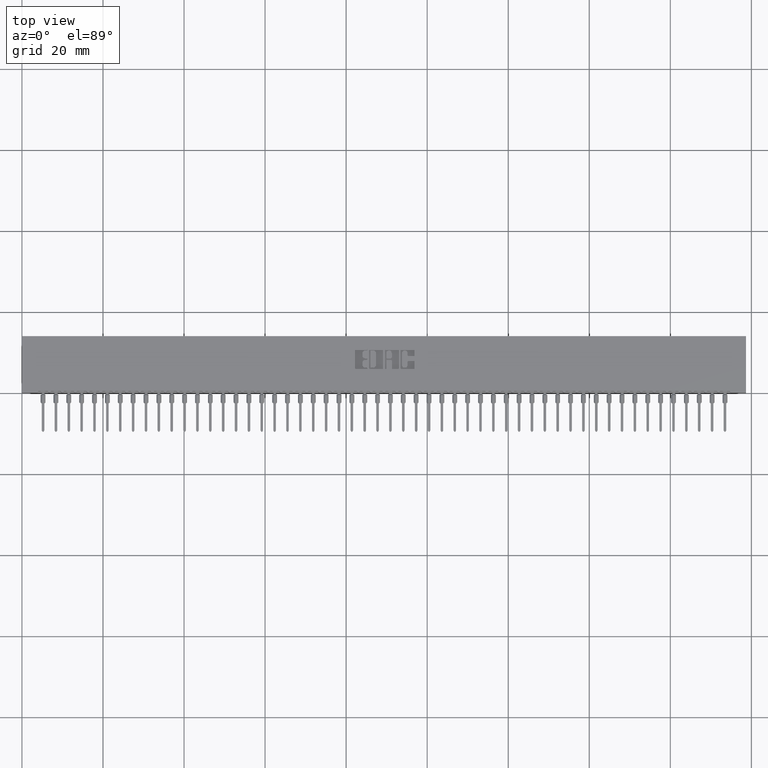
[diagram: clean part render]
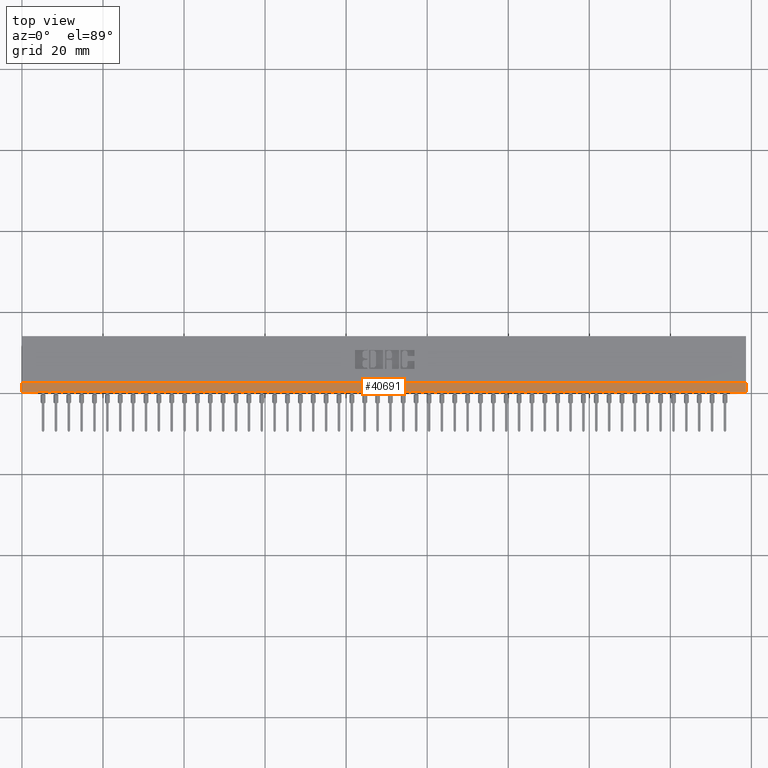
[diagram: same view with one face highlighted and labeled with its STEP entity id]
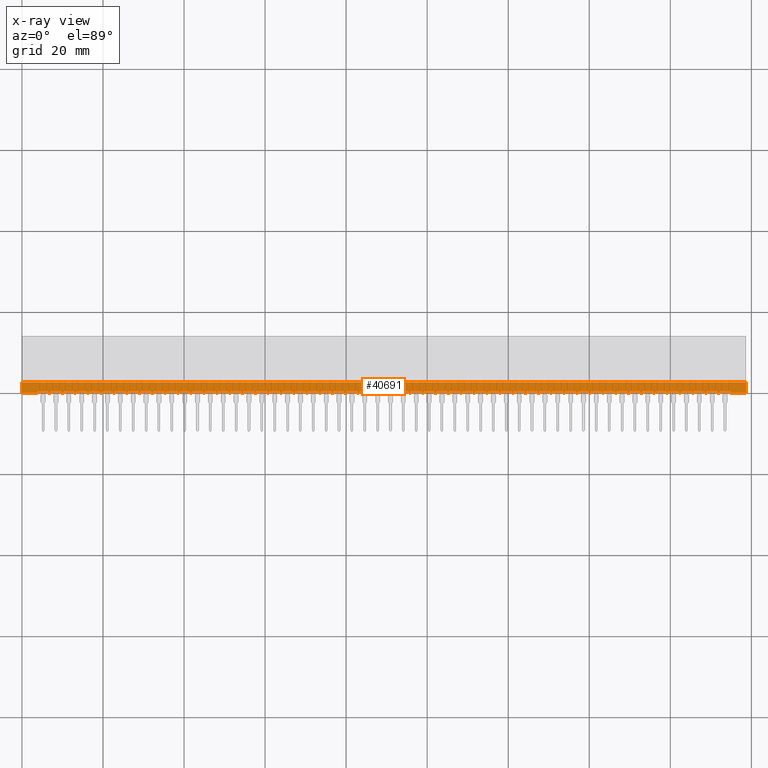
[diagram: x-ray of the same camera — body ghosted, the highlighted face saturated]
A machine part, top view. The second image highlights one B-rep face of the part: STEP entity #40691.
The next image is the same camera in x-ray: the body ghosted, the highlighted face saturated — about 0% of this face is hidden behind the body in this view.
In plain terms, the highlighted planar face has unit normal (0, 0, -1).
Its self-contained STEP definition (entity closure, byte-faithful):
#29 = CARTESIAN_POINT ( 'NONE',  ( 0.3774999999999996692, 0.01499999999999997169, -0.02500000000000000486 ) ) ;
#32 = CARTESIAN_POINT ( 'NONE',  ( 6.407499999999999751, 0.01499999999999997169, -0.02500000000000000486 ) ) ;
#63 = ORIENTED_EDGE ( 'NONE', *, *, #37012, .T. ) ;
#107 = AXIS2_PLACEMENT_3D ( 'NONE', #68231, #19371, #31881 ) ;
#116 = CARTESIAN_POINT ( 'NONE',  ( 0.6274999999999996136, 0.01499999999999997169, -0.02500000000000000486 ) ) ;
#320 = EDGE_CURVE ( 'NONE', #43054, #26937, #21906, .T. ) ;
#338 = CARTESIAN_POINT ( 'NONE',  ( 0.7524999999999997247, 0.01499999999999997169, -0.02500000000000000486 ) ) ;
#401 = DIRECTION ( 'NONE',  ( -0.0000000000000000000, 0.0000000000000000000, 1.000000000000000000 ) ) ;
#532 = DIRECTION ( 'NONE',  ( 1.000000000000000000, 0.0000000000000000000, 0.0000000000000000000 ) ) ;
#667 = LINE ( 'NONE', #7522, #6177 ) ;
#734 = ORIENTED_EDGE ( 'NONE', *, *, #15272, .T. ) ;
#786 = CARTESIAN_POINT ( 'NONE',  ( 2.892499999999999627, 0.01499999999999997169, -0.02500000000000000486 ) ) ;
#819 = VERTEX_POINT ( 'NONE', #31699 ) ;
#943 = VECTOR ( 'NONE', #29406, 39.37007874015748143 ) ;
#954 = ORIENTED_EDGE ( 'NONE', *, *, #71787, .T. ) ;
#1121 = CARTESIAN_POINT ( 'NONE',  ( 3.002499999999999503, 0.01499999999999997169, -0.02500000000000000486 ) ) ;
#1143 = EDGE_CURVE ( 'NONE', #51001, #13391, #67886, .T. ) ;
#1157 = CARTESIAN_POINT ( 'NONE',  ( 3.058999999999999275, 0.01499999999999999424, -0.02500000000000003608 ) ) ;
#1244 = CARTESIAN_POINT ( 'NONE',  ( 0.1574999999999997236, 0.01499999999999997169, -0.02500000000000000486 ) ) ;
#1257 = CARTESIAN_POINT ( 'NONE',  ( 4.252499999999999503, 0.01499999999999997169, -0.02500000000000000486 ) ) ;
#1315 = EDGE_CURVE ( 'NONE', #66060, #30938, #44923, .T. ) ;
#1316 = DIRECTION ( 'NONE',  ( 1.000000000000000000, -0.0000000000000000000, -2.307304048702925122E-16 ) ) ;
#1346 = CARTESIAN_POINT ( 'NONE',  ( 0.1424999999999997102, 0.01499999999999997169, -0.02500000000000000486 ) ) ;
#1418 = CIRCLE ( 'NONE', #10454, 0.01499999999999970281 ) ;
#1457 = EDGE_CURVE ( 'NONE', #819, #58389, #5164, .T. ) ;
#1562 = CARTESIAN_POINT ( 'NONE',  ( 2.308999999999999719, 0.01499999999999999424, -0.02500000000000003608 ) ) ;
#1582 = FACE_OUTER_BOUND ( 'NONE', #49618, .T. ) ;
#1585 = VERTEX_POINT ( 'NONE', #18509 ) ;
#1587 = LINE ( 'NONE', #36729, #30675 ) ;
#1641 = DIRECTION ( 'NONE',  ( -0.0000000000000000000, 0.0000000000000000000, 1.000000000000000000 ) ) ;
#1718 = DIRECTION ( 'NONE',  ( 1.000000000000000000, 0.0000000000000000000, 0.0000000000000000000 ) ) ;
#1783 = VECTOR ( 'NONE', #74143, 39.37007874015748143 ) ;
#1843 = VECTOR ( 'NONE', #43963, 39.37007874015748143 ) ;
#1853 = CARTESIAN_POINT ( 'NONE',  ( 1.058999999999999719, 0.01499999999999999424, -0.02500000000000003608 ) ) ;
#1855 = DIRECTION ( 'NONE',  ( 1.000000000000000000, 0.0000000000000000000, 0.0000000000000000000 ) ) ;
#1927 = DIRECTION ( 'NONE',  ( 1.000000000000000000, -0.0000000000000000000, -2.307304048702925122E-16 ) ) ;
#2057 = DIRECTION ( 'NONE',  ( 1.000000000000000000, -0.0000000000000000000, -2.307304048702925122E-16 ) ) ;
#2327 = LINE ( 'NONE', #14437, #45492 ) ;
#2393 = VERTEX_POINT ( 'NONE', #116 ) ;
#2448 = CARTESIAN_POINT ( 'NONE',  ( 0.3924999999999996825, 0.01499999999999997169, -0.02500000000000000486 ) ) ;
#2471 = VERTEX_POINT ( 'NONE', #76450 ) ;
#2547 = CARTESIAN_POINT ( 'NONE',  ( 1.252499999999999503, 0.01499999999999997169, -0.02500000000000000486 ) ) ;
#2579 = DIRECTION ( 'NONE',  ( 1.000000000000000000, 0.0000000000000000000, 0.0000000000000000000 ) ) ;
#2583 = AXIS2_PLACEMENT_3D ( 'NONE', #44240, #68871, #13541 ) ;
#2599 = DIRECTION ( 'NONE',  ( 1.000000000000000000, -0.0000000000000000000, -2.307304048702925122E-16 ) ) ;
#2743 = ORIENTED_EDGE ( 'NONE', *, *, #20215, .T. ) ;
#2771 = DIRECTION ( 'NONE',  ( 1.000000000000000000, 0.0000000000000000000, 0.0000000000000000000 ) ) ;
#2961 = DIRECTION ( 'NONE',  ( 1.000000000000000000, -0.0000000000000000000, -2.307304048702925122E-16 ) ) ;
#2963 = VERTEX_POINT ( 'NONE', #75558 ) ;
#3059 = LINE ( 'NONE', #39820, #61036 ) ;
#3110 = CARTESIAN_POINT ( 'NONE',  ( 0.9339999999999996083, 0.01499999999999999424, -0.02500000000000003608 ) ) ;
#3149 = DIRECTION ( 'NONE',  ( 1.000000000000000000, 0.0000000000000000000, 0.0000000000000000000 ) ) ;
#3249 = AXIS2_PLACEMENT_3D ( 'NONE', #43717, #25553, #26734 ) ;
#3512 = ORIENTED_EDGE ( 'NONE', *, *, #24641, .T. ) ;
#3595 = CARTESIAN_POINT ( 'NONE',  ( 3.532499999999999751, 0.01499999999999997169, -0.02500000000000000486 ) ) ;
#3646 = CARTESIAN_POINT ( 'NONE',  ( 4.782499999999999751, 0.01499999999999997169, -0.02500000000000000486 ) ) ;
#3722 = CARTESIAN_POINT ( 'NONE',  ( 2.517499999999999627, 0.01499999999999997169, -0.02500000000000000486 ) ) ;
#3761 = VERTEX_POINT ( 'NONE', #51414 ) ;
#3979 = CARTESIAN_POINT ( 'NONE',  ( 3.157499999999999307, 0.01499999999999997169, -0.02500000000000000486 ) ) ;
#4161 = CARTESIAN_POINT ( 'NONE',  ( 5.877499999999999503, 0.01499999999999997169, -0.02500000000000000486 ) ) ;
#4191 = LINE ( 'NONE', #39749, #46009 ) ;
#4277 = DIRECTION ( 'NONE',  ( 1.000000000000000000, 0.0000000000000000000, 0.0000000000000000000 ) ) ;
#4435 = VERTEX_POINT ( 'NONE', #338 ) ;
#4469 = CARTESIAN_POINT ( 'NONE',  ( 2.627499999999999947, 0.01499999999999997169, -0.02500000000000000486 ) ) ;
#4513 = CIRCLE ( 'NONE', #47058, 0.01500000000000024925 ) ;
#4682 = CIRCLE ( 'NONE', #51104, 0.01499999999999970281 ) ;
#4716 = AXIS2_PLACEMENT_3D ( 'NONE', #13641, #50019, #64805 ) ;
#4898 = DIRECTION ( 'NONE',  ( 1.000000000000000000, 0.0000000000000000000, 0.0000000000000000000 ) ) ;
#4899 = DIRECTION ( 'NONE',  ( -0.0000000000000000000, 0.0000000000000000000, 1.000000000000000000 ) ) ;
#5014 = DIRECTION ( 'NONE',  ( 1.000000000000000000, -0.0000000000000000000, -2.307304048702925122E-16 ) ) ;
#5042 = CARTESIAN_POINT ( 'NONE',  ( 5.933999999999998387, 0.01499999999999999424, -0.02500000000000003608 ) ) ;
#5135 = VERTEX_POINT ( 'NONE', #70276 ) ;
#5164 = LINE ( 'NONE', #35475, #64828 ) ;
#5298 = DIRECTION ( 'NONE',  ( 1.000000000000000000, 0.0000000000000000000, 0.0000000000000000000 ) ) ;
#5353 = CARTESIAN_POINT ( 'NONE',  ( 4.502499999999999503, 0.01499999999999997169, -0.02500000000000000486 ) ) ;
#5498 = CARTESIAN_POINT ( 'NONE',  ( 6.032499999999999751, 0.01499999999999997169, -0.02500000000000000486 ) ) ;
#5525 = DIRECTION ( 'NONE',  ( 1.000000000000000000, -0.0000000000000000000, -2.307304048702925122E-16 ) ) ;
#5649 = CARTESIAN_POINT ( 'NONE',  ( 6.267499999999998295, 0.01499999999999997169, -0.02500000000000000486 ) ) ;
#5776 = ORIENTED_EDGE ( 'NONE', *, *, #29306, .T. ) ;
#5818 = EDGE_CURVE ( 'NONE', #72599, #51001, #16340, .T. ) ;
#5903 = EDGE_CURVE ( 'NONE', #72505, #11448, #7419, .T. ) ;
#6122 = EDGE_CURVE ( 'NONE', #25628, #31370, #22730, .T. ) ;
#6144 = ORIENTED_EDGE ( 'NONE', *, *, #47772, .T. ) ;
#6177 = VECTOR ( 'NONE', #37824, 39.37007874015748143 ) ;
#6279 = CARTESIAN_POINT ( 'NONE',  ( 2.377499999999999503, 0.01499999999999997169, -0.02500000000000000486 ) ) ;
#6301 = CIRCLE ( 'NONE', #68219, 0.01499999999999997689 ) ;
#6330 = CARTESIAN_POINT ( 'NONE',  ( 4.058999999999999275, 0.01499999999999999424, -0.02500000000000003608 ) ) ;
#6363 = ORIENTED_EDGE ( 'NONE', *, *, #15608, .T. ) ;
#6415 = EDGE_CURVE ( 'NONE', #72166, #2963, #9308, .T. ) ;
#6710 = CIRCLE ( 'NONE', #11829, 0.01500000000000024925 ) ;
#6753 = EDGE_CURVE ( 'NONE', #68035, #7925, #29285, .T. ) ;
#6765 = DIRECTION ( 'NONE',  ( 1.000000000000000000, 0.0000000000000000000, 0.0000000000000000000 ) ) ;
#6801 = CARTESIAN_POINT ( 'NONE',  ( 2.282499999999999307, 0.01499999999999997169, -0.02500000000000000486 ) ) ;
#7226 = CARTESIAN_POINT ( 'NONE',  ( 4.657499999999999751, 0.01499999999999997169, -0.02500000000000000486 ) ) ;
#7229 = PLANE ( 'NONE',  #107 ) ;
#7277 = EDGE_CURVE ( 'NONE', #7835, #60296, #73166, .T. ) ;
#7389 = DIRECTION ( 'NONE',  ( -0.0000000000000000000, 0.0000000000000000000, 1.000000000000000000 ) ) ;
#7400 = VECTOR ( 'NONE', #5014, 39.37007874015748143 ) ;
#7419 = LINE ( 'NONE', #56709, #67914 ) ;
#7522 = CARTESIAN_POINT ( 'NONE',  ( 6.558999999999998387, 0.01499999999999999424, -0.02500000000000003608 ) ) ;
#7766 = ORIENTED_EDGE ( 'NONE', *, *, #53710, .T. ) ;
#7835 = VERTEX_POINT ( 'NONE', #62595 ) ;
#7839 = VECTOR ( 'NONE', #10115, 39.37007874015748143 ) ;
#7912 = CARTESIAN_POINT ( 'NONE',  ( 6.017499999999999183, 0.01499999999999997169, -0.02500000000000000486 ) ) ;
#7925 = VERTEX_POINT ( 'NONE', #8827 ) ;
#7939 = DIRECTION ( 'NONE',  ( 1.000000000000000000, -0.0000000000000000000, -2.307304048702925122E-16 ) ) ;
#8198 = CARTESIAN_POINT ( 'NONE',  ( 4.433999999999999275, 0.01499999999999999424, -0.02500000000000003608 ) ) ;
#8231 = ORIENTED_EDGE ( 'NONE', *, *, #22062, .T. ) ;
#8467 = ORIENTED_EDGE ( 'NONE', *, *, #42050, .T. ) ;
#8580 = EDGE_CURVE ( 'NONE', #72287, #20830, #60432, .T. ) ;
#8768 = AXIS2_PLACEMENT_3D ( 'NONE', #786, #50073, #74715 ) ;
#8813 = CIRCLE ( 'NONE', #65637, 0.01500000000000024925 ) ;
#8827 = CARTESIAN_POINT ( 'NONE',  ( 4.157499999999999751, 0.01499999999999997169, -0.02500000000000000486 ) ) ;
#8939 = DIRECTION ( 'NONE',  ( 1.000000000000000000, -0.0000000000000000000, -2.307304048702925122E-16 ) ) ;
#8964 = ORIENTED_EDGE ( 'NONE', *, *, #52515, .T. ) ;
#8989 = VECTOR ( 'NONE', #44603, 39.37007874015748143 ) ;
#9040 = CIRCLE ( 'NONE', #27098, 0.01499999999999997689 ) ;
#9047 = CARTESIAN_POINT ( 'NONE',  ( 4.532499999999999751, 0.01499999999999997169, -0.02500000000000000486 ) ) ;
#9103 = AXIS2_PLACEMENT_3D ( 'NONE', #77921, #77538, #41933 ) ;
#9156 = CIRCLE ( 'NONE', #73628, 0.01500000000000024925 ) ;
#9188 = ORIENTED_EDGE ( 'NONE', *, *, #37481, .T. ) ;
#9308 = LINE ( 'NONE', #58583, #57667 ) ;
#9361 = AXIS2_PLACEMENT_3D ( 'NONE', #23080, #42037, #78029 ) ;
#9483 = VERTEX_POINT ( 'NONE', #1244 ) ;
#9550 = DIRECTION ( 'NONE',  ( -0.0000000000000000000, 0.0000000000000000000, 1.000000000000000000 ) ) ;
#9560 = DIRECTION ( 'NONE',  ( 1.000000000000000000, -0.0000000000000000000, -2.307304048702925122E-16 ) ) ;
#9637 = CARTESIAN_POINT ( 'NONE',  ( 0.0000000000000000000, 0.1000000000000000056, -0.02500000000000000486 ) ) ;
#9787 = DIRECTION ( 'NONE',  ( 1.000000000000000000, 0.0000000000000000000, 0.0000000000000000000 ) ) ;
#9829 = AXIS2_PLACEMENT_3D ( 'NONE', #60272, #48949, #59868 ) ;
#9890 = VERTEX_POINT ( 'NONE', #12459 ) ;
#9978 = EDGE_CURVE ( 'NONE', #78785, #72287, #13654, .T. ) ;
#10114 = ORIENTED_EDGE ( 'NONE', *, *, #35385, .T. ) ;
#10115 = DIRECTION ( 'NONE',  ( 1.000000000000000000, -0.0000000000000000000, -2.307304048702925122E-16 ) ) ;
#10285 = DIRECTION ( 'NONE',  ( -0.0000000000000000000, -1.000000000000000000, -0.0000000000000000000 ) ) ;
#10287 = EDGE_CURVE ( 'NONE', #53930, #29986, #19270, .T. ) ;
#10307 = ORIENTED_EDGE ( 'NONE', *, *, #73556, .T. ) ;
#10428 = CARTESIAN_POINT ( 'NONE',  ( 2.183999999999999719, 0.01499999999999999424, -0.02500000000000003608 ) ) ;
#10454 = AXIS2_PLACEMENT_3D ( 'NONE', #5649, #54939, #45598 ) ;
#10473 = VECTOR ( 'NONE', #35350, 39.37007874015748143 ) ;
#10483 = CIRCLE ( 'NONE', #23406, 0.01499999999999997689 ) ;
#10691 = ORIENTED_EDGE ( 'NONE', *, *, #17717, .T. ) ;
#10758 = CARTESIAN_POINT ( 'NONE',  ( 3.907499999999999751, 0.01499999999999997169, -0.02500000000000000486 ) ) ;
#10822 = AXIS2_PLACEMENT_3D ( 'NONE', #52977, #22292, #46917 ) ;
#10929 = CIRCLE ( 'NONE', #58682, 0.01500000000000024925 ) ;
#11093 = DIRECTION ( 'NONE',  ( 1.000000000000000000, -0.0000000000000000000, -2.307304048702925122E-16 ) ) ;
#11170 = CARTESIAN_POINT ( 'NONE',  ( 4.002499999999999503, 0.01499999999999997169, -0.02500000000000000486 ) ) ;
#11232 = ORIENTED_EDGE ( 'NONE', *, *, #18299, .T. ) ;
#11276 = CARTESIAN_POINT ( 'NONE',  ( 6.877499999999998614, 0.01499999999999997169, -0.02500000000000000486 ) ) ;
#11388 = ORIENTED_EDGE ( 'NONE', *, *, #23629, .T. ) ;
#11401 = EDGE_CURVE ( 'NONE', #78810, #5135, #57188, .T. ) ;
#11423 = CARTESIAN_POINT ( 'NONE',  ( 3.517499999999999627, 0.01499999999999997169, -0.02500000000000000486 ) ) ;
#11424 = CARTESIAN_POINT ( 'NONE',  ( 5.627500000000000391, 0.01499999999999997169, -0.02500000000000000486 ) ) ;
#11448 = VERTEX_POINT ( 'NONE', #68117 ) ;
#11789 = DIRECTION ( 'NONE',  ( 1.000000000000000000, 0.0000000000000000000, 0.0000000000000000000 ) ) ;
#11817 = DIRECTION ( 'NONE',  ( -0.0000000000000000000, 0.0000000000000000000, 1.000000000000000000 ) ) ;
#11829 = AXIS2_PLACEMENT_3D ( 'NONE', #76536, #27627, #70840 ) ;
#11837 = EDGE_CURVE ( 'NONE', #22832, #68909, #35247, .T. ) ;
#11904 = VERTEX_POINT ( 'NONE', #77586 ) ;
#11985 = VERTEX_POINT ( 'NONE', #21429 ) ;
#11992 = CARTESIAN_POINT ( 'NONE',  ( 4.808999999999999275, 0.01499999999999999424, -0.02500000000000003608 ) ) ;
#12088 = CIRCLE ( 'NONE', #77957, 0.01500000000000024925 ) ;
#12115 = VECTOR ( 'NONE', #47155, 39.37007874015748143 ) ;
#12307 = DIRECTION ( 'NONE',  ( 1.000000000000000000, 0.0000000000000000000, 0.0000000000000000000 ) ) ;
#12340 = EDGE_CURVE ( 'NONE', #66115, #27523, #48799, .T. ) ;
#12459 = CARTESIAN_POINT ( 'NONE',  ( 5.032499999999999751, 0.01499999999999997169, -0.02500000000000000486 ) ) ;
#12530 = CIRCLE ( 'NONE', #49963, 0.01499999999999970281 ) ;
#12608 = EDGE_CURVE ( 'NONE', #30938, #67552, #68206, .T. ) ;
#12720 = VERTEX_POINT ( 'NONE', #71991 ) ;
#12797 = ORIENTED_EDGE ( 'NONE', *, *, #34223, .T. ) ;
#12827 = DIRECTION ( 'NONE',  ( 1.000000000000000000, 0.0000000000000000000, 0.0000000000000000000 ) ) ;
#13072 = VERTEX_POINT ( 'NONE', #52912 ) ;
#13075 = EDGE_CURVE ( 'NONE', #26723, #13365, #9040, .T. ) ;
#13227 = DIRECTION ( 'NONE',  ( 1.000000000000000000, -0.0000000000000000000, -2.307304048702925122E-16 ) ) ;
#13241 = CIRCLE ( 'NONE', #23551, 0.01499999999999970281 ) ;
#13365 = VERTEX_POINT ( 'NONE', #64938 ) ;
#13391 = VERTEX_POINT ( 'NONE', #69788 ) ;
#13541 = DIRECTION ( 'NONE',  ( 1.000000000000000000, 0.0000000000000000000, 0.0000000000000000000 ) ) ;
#13627 = DIRECTION ( 'NONE',  ( -0.0000000000000000000, 0.0000000000000000000, 1.000000000000000000 ) ) ;
#13641 = CARTESIAN_POINT ( 'NONE',  ( 2.017499999999999627, 0.01499999999999997169, -0.02500000000000000486 ) ) ;
#13654 = LINE ( 'NONE', #14845, #61930 ) ;
#13711 = ORIENTED_EDGE ( 'NONE', *, *, #51120, .T. ) ;
#13762 = EDGE_CURVE ( 'NONE', #13072, #72394, #62724, .T. ) ;
#13966 = AXIS2_PLACEMENT_3D ( 'NONE', #61151, #24402, #29255 ) ;
#14004 = EDGE_CURVE ( 'NONE', #11985, #33814, #79506, .T. ) ;
#14146 = VECTOR ( 'NONE', #25739, 39.37007874015748143 ) ;
#14326 = AXIS2_PLACEMENT_3D ( 'NONE', #21173, #26828, #34067 ) ;
#14437 = CARTESIAN_POINT ( 'NONE',  ( 4.308999999999999275, 0.01499999999999999424, -0.02500000000000003608 ) ) ;
#14524 = ORIENTED_EDGE ( 'NONE', *, *, #41346, .F. ) ;
#14630 = CARTESIAN_POINT ( 'NONE',  ( 5.782499999999999751, 0.01499999999999997169, -0.02500000000000000486 ) ) ;
#14771 = VECTOR ( 'NONE', #78085, 39.37007874015748143 ) ;
#14845 = CARTESIAN_POINT ( 'NONE',  ( 7.034999999999999254, 0.0000000000000000000, -0.02500000000000000486 ) ) ;
#14853 = VERTEX_POINT ( 'NONE', #41891 ) ;
#15128 = VERTEX_POINT ( 'NONE', #64460 ) ;
#15155 = VECTOR ( 'NONE', #35313, 39.37007874015748143 ) ;
#15225 = VERTEX_POINT ( 'NONE', #65253 ) ;
#15242 = CARTESIAN_POINT ( 'NONE',  ( 6.767499999999999183, 0.01499999999999997169, -0.02500000000000000486 ) ) ;
#15272 = EDGE_CURVE ( 'NONE', #33881, #73427, #60383, .T. ) ;
#15436 = DIRECTION ( 'NONE',  ( 1.000000000000000000, 0.0000000000000000000, 0.0000000000000000000 ) ) ;
#15440 = VERTEX_POINT ( 'NONE', #74909 ) ;
#15451 = CARTESIAN_POINT ( 'NONE',  ( 0.0000000000000000000, 0.0000000000000000000, -0.02500000000000000486 ) ) ;
#15608 = EDGE_CURVE ( 'NONE', #46011, #65905, #47773, .T. ) ;
#15688 = CARTESIAN_POINT ( 'NONE',  ( 3.627499999999999503, 0.01499999999999997169, -0.02500000000000000486 ) ) ;
#15730 = CARTESIAN_POINT ( 'NONE',  ( 6.157499999999998863, 0.01499999999999997169, -0.02500000000000000486 ) ) ;
#15762 = LINE ( 'NONE', #58977, #29367 ) ;
#15809 = VECTOR ( 'NONE', #57082, 39.37007874015748143 ) ;
#15847 = CARTESIAN_POINT ( 'NONE',  ( 4.282499999999999751, 0.01499999999999997169, -0.02500000000000000486 ) ) ;
#15902 = DIRECTION ( 'NONE',  ( -0.0000000000000000000, 0.0000000000000000000, 1.000000000000000000 ) ) ;
#15908 = CARTESIAN_POINT ( 'NONE',  ( 5.532499999999999751, 0.01499999999999997169, -0.02500000000000000486 ) ) ;
#15921 = VECTOR ( 'NONE', #1927, 39.37007874015748143 ) ;
#15942 = AXIS2_PLACEMENT_3D ( 'NONE', #7912, #68900, #1855 ) ;
#16049 = CARTESIAN_POINT ( 'NONE',  ( 4.752499999999999503, 0.01499999999999997169, -0.02500000000000000486 ) ) ;
#16120 = EDGE_CURVE ( 'NONE', #22944, #2393, #31389, .T. ) ;
#16262 = CARTESIAN_POINT ( 'NONE',  ( 6.142499999999999183, 0.01499999999999997169, -0.02500000000000000486 ) ) ;
#16294 = AXIS2_PLACEMENT_3D ( 'NONE', #52117, #27082, #77964 ) ;
#16340 = CIRCLE ( 'NONE', #51153, 0.01499999999999997689 ) ;
#16387 = CIRCLE ( 'NONE', #69231, 0.01500000000000024925 ) ;
#16789 = CARTESIAN_POINT ( 'NONE',  ( 0.2824999999999996958, 0.01499999999999997169, -0.02500000000000000486 ) ) ;
#16875 = CIRCLE ( 'NONE', #59592, 0.01499999999999997689 ) ;
#17080 = ORIENTED_EDGE ( 'NONE', *, *, #72348, .T. ) ;
#17161 = ORIENTED_EDGE ( 'NONE', *, *, #69678, .T. ) ;
#17190 = EDGE_CURVE ( 'NONE', #20705, #51995, #38942, .T. ) ;
#17336 = ORIENTED_EDGE ( 'NONE', *, *, #50658, .T. ) ;
#17432 = EDGE_CURVE ( 'NONE', #31370, #72505, #16875, .T. ) ;
#17478 = AXIS2_PLACEMENT_3D ( 'NONE', #18386, #43005, #12307 ) ;
#17537 = LINE ( 'NONE', #36909, #7400 ) ;
#17717 = EDGE_CURVE ( 'NONE', #46750, #63100, #25918, .T. ) ;
#17764 = ORIENTED_EDGE ( 'NONE', *, *, #62457, .T. ) ;
#17848 = EDGE_CURVE ( 'NONE', #78098, #72166, #1418, .T. ) ;
#18076 = ORIENTED_EDGE ( 'NONE', *, *, #17190, .T. ) ;
#18158 = CARTESIAN_POINT ( 'NONE',  ( 1.683999999999999497, 0.01499999999999999424, -0.02500000000000003608 ) ) ;
#18179 = AXIS2_PLACEMENT_3D ( 'NONE', #75439, #13627, #21282 ) ;
#18188 = LINE ( 'NONE', #42805, #64748 ) ;
#18299 = EDGE_CURVE ( 'NONE', #7925, #58046, #38661, .T. ) ;
#18386 = CARTESIAN_POINT ( 'NONE',  ( 3.017499999999999627, 0.01499999999999997169, -0.02500000000000000486 ) ) ;
#18423 = VECTOR ( 'NONE', #1316, 39.37007874015748143 ) ;
#18509 = CARTESIAN_POINT ( 'NONE',  ( 5.127499999999999503, 0.01499999999999997169, -0.02500000000000000486 ) ) ;
#18715 = EDGE_CURVE ( 'NONE', #58046, #65158, #6710, .T. ) ;
#18767 = CIRCLE ( 'NONE', #39389, 0.01500000000000024925 ) ;
#18973 = VECTOR ( 'NONE', #73151, 39.37007874015748143 ) ;
#19031 = CARTESIAN_POINT ( 'NONE',  ( 2.433999999999999719, 0.01499999999999999424, -0.02500000000000003608 ) ) ;
#19270 = CIRCLE ( 'NONE', #29562, 0.01499999999999970281 ) ;
#19371 = DIRECTION ( 'NONE',  ( 0.0000000000000000000, 0.0000000000000000000, -1.000000000000000000 ) ) ;
#19373 = EDGE_CURVE ( 'NONE', #14853, #78505, #45451, .T. ) ;
#19374 = VERTEX_POINT ( 'NONE', #36363 ) ;
#19412 = CARTESIAN_POINT ( 'NONE',  ( 1.532499999999999529, 0.01499999999999997169, -0.02500000000000000486 ) ) ;
#19466 = ORIENTED_EDGE ( 'NONE', *, *, #76854, .T. ) ;
#19470 = ORIENTED_EDGE ( 'NONE', *, *, #35442, .T. ) ;
#19575 = EDGE_CURVE ( 'NONE', #36580, #819, #79033, .T. ) ;
#19719 = CARTESIAN_POINT ( 'NONE',  ( 6.002499999999999503, 0.01499999999999997169, -0.02500000000000000486 ) ) ;
#19860 = VERTEX_POINT ( 'NONE', #4161 ) ;
#20042 = CIRCLE ( 'NONE', #76840, 0.01500000000000024925 ) ;
#20062 = AXIS2_PLACEMENT_3D ( 'NONE', #65099, #65509, #15436 ) ;
#20212 = VECTOR ( 'NONE', #74191, 39.37007874015748143 ) ;
#20215 = EDGE_CURVE ( 'NONE', #73427, #66060, #35189, .T. ) ;
#20332 = DIRECTION ( 'NONE',  ( 0.0000000000000000000, -0.0000000000000000000, -1.000000000000000000 ) ) ;
#20380 = CIRCLE ( 'NONE', #52599, 0.01499999999999997689 ) ;
#20441 = CARTESIAN_POINT ( 'NONE',  ( 5.407499999999999751, 0.01499999999999997169, -0.02500000000000000486 ) ) ;
#20467 = ORIENTED_EDGE ( 'NONE', *, *, #13762, .T. ) ;
#20592 = ORIENTED_EDGE ( 'NONE', *, *, #12340, .T. ) ;
#20705 = VERTEX_POINT ( 'NONE', #68019 ) ;
#20756 = VERTEX_POINT ( 'NONE', #3646 ) ;
#20830 = VERTEX_POINT ( 'NONE', #40793 ) ;
#21103 = DIRECTION ( 'NONE',  ( -0.0000000000000000000, 0.0000000000000000000, 1.000000000000000000 ) ) ;
#21170 = ORIENTED_EDGE ( 'NONE', *, *, #10287, .T. ) ;
#21173 = CARTESIAN_POINT ( 'NONE',  ( 2.142500000000000071, 0.01499999999999997169, -0.02500000000000000486 ) ) ;
#21258 = CARTESIAN_POINT ( 'NONE',  ( 0.5324999999999997513, 0.01499999999999997169, -0.02500000000000000486 ) ) ;
#21281 = ORIENTED_EDGE ( 'NONE', *, *, #39341, .T. ) ;
#21282 = DIRECTION ( 'NONE',  ( 1.000000000000000000, 0.0000000000000000000, 0.0000000000000000000 ) ) ;
#21311 = EDGE_CURVE ( 'NONE', #78505, #19860, #45961, .T. ) ;
#21384 = ORIENTED_EDGE ( 'NONE', *, *, #40491, .T. ) ;
#21429 = CARTESIAN_POINT ( 'NONE',  ( 1.627499999999999503, 0.01499999999999997169, -0.02500000000000000486 ) ) ;
#21578 = EDGE_CURVE ( 'NONE', #34317, #54395, #69314, .T. ) ;
#21668 = LINE ( 'NONE', #26128, #73290 ) ;
#21766 = CARTESIAN_POINT ( 'NONE',  ( 0.7674999999999996270, 0.01499999999999997169, -0.02500000000000000486 ) ) ;
#21790 = ORIENTED_EDGE ( 'NONE', *, *, #79347, .T. ) ;
#21852 = ORIENTED_EDGE ( 'NONE', *, *, #5903, .T. ) ;
#21871 = CARTESIAN_POINT ( 'NONE',  ( 1.183999999999999719, 0.01499999999999999424, -0.02500000000000003608 ) ) ;
#21906 = CIRCLE ( 'NONE', #2583, 0.01499999999999970281 ) ;
#22051 = LINE ( 'NONE', #69327, #10473 ) ;
#22062 = EDGE_CURVE ( 'NONE', #11904, #43529, #33647, .T. ) ;
#22106 = VERTEX_POINT ( 'NONE', #57900 ) ;
#22140 = EDGE_CURVE ( 'NONE', #26937, #14853, #78871, .T. ) ;
#22263 = VECTOR ( 'NONE', #33630, 39.37007874015748143 ) ;
#22267 = CARTESIAN_POINT ( 'NONE',  ( 5.907499999999998863, 0.01499999999999997169, -0.02500000000000000486 ) ) ;
#22292 = DIRECTION ( 'NONE',  ( -0.0000000000000000000, 0.0000000000000000000, 1.000000000000000000 ) ) ;
#22530 = CARTESIAN_POINT ( 'NONE',  ( 5.808999999999999275, 0.01499999999999999424, -0.02500000000000003608 ) ) ;
#22686 = CIRCLE ( 'NONE', #67805, 0.01499999999999970281 ) ;
#22730 = LINE ( 'NONE', #72388, #76942 ) ;
#22813 = AXIS2_PLACEMENT_3D ( 'NONE', #69287, #76571, #32157 ) ;
#22816 = DIRECTION ( 'NONE',  ( -0.0000000000000000000, 0.0000000000000000000, 1.000000000000000000 ) ) ;
#22832 = VERTEX_POINT ( 'NONE', #71314 ) ;
#22849 = ORIENTED_EDGE ( 'NONE', *, *, #75659, .T. ) ;
#22864 = CARTESIAN_POINT ( 'NONE',  ( 1.892499999999999627, 0.01499999999999997169, -0.02500000000000000486 ) ) ;
#22944 = VERTEX_POINT ( 'NONE', #21258 ) ;
#23079 = EDGE_CURVE ( 'NONE', #72390, #36611, #65226, .T. ) ;
#23080 = CARTESIAN_POINT ( 'NONE',  ( 5.767499999999999183, 0.01499999999999997169, -0.02500000000000000486 ) ) ;
#23088 = CARTESIAN_POINT ( 'NONE',  ( 2.907499999999999307, 0.01499999999999997169, -0.02500000000000000486 ) ) ;
#23298 = EDGE_CURVE ( 'NONE', #71717, #63014, #22686, .T. ) ;
#23356 = EDGE_CURVE ( 'NONE', #36860, #66117, #56188, .T. ) ;
#23406 = AXIS2_PLACEMENT_3D ( 'NONE', #45812, #33300, #51496 ) ;
#23513 = CARTESIAN_POINT ( 'NONE',  ( 5.058999999999998387, 0.01499999999999999424, -0.02500000000000003608 ) ) ;
#23551 = AXIS2_PLACEMENT_3D ( 'NONE', #46766, #59301, #35434 ) ;
#23629 = EDGE_CURVE ( 'NONE', #30657, #52906, #71127, .T. ) ;
#23693 = CARTESIAN_POINT ( 'NONE',  ( 4.907499999999999751, 0.01499999999999997169, -0.02500000000000000486 ) ) ;
#23766 = EDGE_CURVE ( 'NONE', #36611, #46253, #57281, .T. ) ;
#23816 = CARTESIAN_POINT ( 'NONE',  ( 4.877499999999999503, 0.01499999999999997169, -0.02500000000000000486 ) ) ;
#23832 = CARTESIAN_POINT ( 'NONE',  ( 5.002500000000000391, 0.01499999999999997169, -0.02500000000000000486 ) ) ;
#23938 = DIRECTION ( 'NONE',  ( 1.000000000000000000, 0.0000000000000000000, 0.0000000000000000000 ) ) ;
#24177 = CARTESIAN_POINT ( 'NONE',  ( 3.752499999999999503, 0.01499999999999997169, -0.02500000000000000486 ) ) ;
#24281 = DIRECTION ( 'NONE',  ( -0.0000000000000000000, 0.0000000000000000000, 1.000000000000000000 ) ) ;
#24402 = DIRECTION ( 'NONE',  ( -0.0000000000000000000, 0.0000000000000000000, 1.000000000000000000 ) ) ;
#24420 = ORIENTED_EDGE ( 'NONE', *, *, #14004, .T. ) ;
#24423 = ORIENTED_EDGE ( 'NONE', *, *, #1457, .T. ) ;
#24442 = ORIENTED_EDGE ( 'NONE', *, *, #9978, .F. ) ;
#24641 = EDGE_CURVE ( 'NONE', #24964, #43054, #28515, .T. ) ;
#24815 = DIRECTION ( 'NONE',  ( -0.0000000000000000000, 0.0000000000000000000, 1.000000000000000000 ) ) ;
#24859 = CARTESIAN_POINT ( 'NONE',  ( 5.282499999999998863, 0.01499999999999997169, -0.02500000000000000486 ) ) ;
#24863 = LINE ( 'NONE', #49508, #1783 ) ;
#24964 = VERTEX_POINT ( 'NONE', #15908 ) ;
#25152 = EDGE_CURVE ( 'NONE', #54153, #66362, #61419, .T. ) ;
#25166 = CIRCLE ( 'NONE', #3249, 0.01499999999999997689 ) ;
#25218 = DIRECTION ( 'NONE',  ( 1.000000000000000000, 0.0000000000000000000, 0.0000000000000000000 ) ) ;
#25317 = VERTEX_POINT ( 'NONE', #62711 ) ;
#25519 = LINE ( 'NONE', #50936, #30844 ) ;
#25553 = DIRECTION ( 'NONE',  ( -0.0000000000000000000, 0.0000000000000000000, 1.000000000000000000 ) ) ;
#25628 = VERTEX_POINT ( 'NONE', #64098 ) ;
#25677 = ORIENTED_EDGE ( 'NONE', *, *, #47936, .T. ) ;
#25739 = DIRECTION ( 'NONE',  ( 1.000000000000000000, -0.0000000000000000000, -2.307304048702925122E-16 ) ) ;
#25783 = VECTOR ( 'NONE', #29065, 39.37007874015748143 ) ;
#25918 = CIRCLE ( 'NONE', #14326, 0.01499999999999997689 ) ;
#26000 = DIRECTION ( 'NONE',  ( -0.0000000000000000000, 0.0000000000000000000, 1.000000000000000000 ) ) ;
#26039 = ORIENTED_EDGE ( 'NONE', *, *, #56946, .T. ) ;
#26080 = EDGE_CURVE ( 'NONE', #78948, #11985, #4191, .T. ) ;
#26128 = CARTESIAN_POINT ( 'NONE',  ( 3.808999999999999275, 0.01499999999999999424, -0.02500000000000003608 ) ) ;
#26197 = DIRECTION ( 'NONE',  ( 1.000000000000000000, -0.0000000000000000000, -2.307304048702925122E-16 ) ) ;
#26293 = EDGE_CURVE ( 'NONE', #55504, #72390, #79716, .T. ) ;
#26361 = CARTESIAN_POINT ( 'NONE',  ( 1.377499999999999725, 0.01499999999999997169, -0.02500000000000000486 ) ) ;
#26623 = DIRECTION ( 'NONE',  ( 1.000000000000000000, -0.0000000000000000000, -2.307304048702925122E-16 ) ) ;
#26636 = DIRECTION ( 'NONE',  ( 1.000000000000000000, -0.0000000000000000000, -2.307304048702925122E-16 ) ) ;
#26692 = DIRECTION ( 'NONE',  ( 1.000000000000000000, 0.0000000000000000000, 0.0000000000000000000 ) ) ;
#26706 = ORIENTED_EDGE ( 'NONE', *, *, #23079, .T. ) ;
#26723 = VERTEX_POINT ( 'NONE', #29 ) ;
#26734 = DIRECTION ( 'NONE',  ( 1.000000000000000000, 0.0000000000000000000, 0.0000000000000000000 ) ) ;
#26745 = CARTESIAN_POINT ( 'NONE',  ( 6.058999999999999275, 0.01499999999999999424, -0.02500000000000003608 ) ) ;
#26828 = DIRECTION ( 'NONE',  ( -0.0000000000000000000, 0.0000000000000000000, 1.000000000000000000 ) ) ;
#26937 = VERTEX_POINT ( 'NONE', #70247 ) ;
#27016 = DIRECTION ( 'NONE',  ( 1.000000000000000000, -0.0000000000000000000, -2.307304048702925122E-16 ) ) ;
#27080 = DIRECTION ( 'NONE',  ( 1.000000000000000000, 0.0000000000000000000, 0.0000000000000000000 ) ) ;
#27082 = DIRECTION ( 'NONE',  ( -0.0000000000000000000, 0.0000000000000000000, 1.000000000000000000 ) ) ;
#27098 = AXIS2_PLACEMENT_3D ( 'NONE', #2448, #39187, #27080 ) ;
#27496 = DIRECTION ( 'NONE',  ( 1.000000000000000000, 0.0000000000000000000, 0.0000000000000000000 ) ) ;
#27523 = VERTEX_POINT ( 'NONE', #36080 ) ;
#27595 = CARTESIAN_POINT ( 'NONE',  ( 3.308999999999999719, 0.01499999999999999424, -0.02500000000000003608 ) ) ;
#27627 = DIRECTION ( 'NONE',  ( -0.0000000000000000000, 0.0000000000000000000, 1.000000000000000000 ) ) ;
#27749 = DIRECTION ( 'NONE',  ( 1.000000000000000000, -0.0000000000000000000, -2.307304048702925122E-16 ) ) ;
#27789 = ORIENTED_EDGE ( 'NONE', *, *, #22140, .T. ) ;
#27930 = ORIENTED_EDGE ( 'NONE', *, *, #63321, .T. ) ;
#28152 = ORIENTED_EDGE ( 'NONE', *, *, #67092, .T. ) ;
#28158 = CARTESIAN_POINT ( 'NONE',  ( 2.877499999999999503, 0.01499999999999997169, -0.02500000000000000486 ) ) ;
#28191 = VECTOR ( 'NONE', #49517, 39.37007874015748143 ) ;
#28216 = ORIENTED_EDGE ( 'NONE', *, *, #25152, .T. ) ;
#28362 = DIRECTION ( 'NONE',  ( -0.0000000000000000000, 0.0000000000000000000, 1.000000000000000000 ) ) ;
#28402 = EDGE_CURVE ( 'NONE', #54395, #11904, #8813, .T. ) ;
#28515 = LINE ( 'NONE', #53151, #61355 ) ;
#28691 = EDGE_CURVE ( 'NONE', #64038, #71717, #25519, .T. ) ;
#28918 = CARTESIAN_POINT ( 'NONE',  ( 1.907499999999999529, 0.01499999999999997169, -0.02500000000000000486 ) ) ;
#29030 = VECTOR ( 'NONE', #46915, 39.37007874015748143 ) ;
#29065 = DIRECTION ( 'NONE',  ( 1.000000000000000000, -0.0000000000000000000, -2.307304048702925122E-16 ) ) ;
#29115 = AXIS2_PLACEMENT_3D ( 'NONE', #11423, #11817, #23938 ) ;
#29194 = ORIENTED_EDGE ( 'NONE', *, *, #8580, .F. ) ;
#29255 = DIRECTION ( 'NONE',  ( 1.000000000000000000, 0.0000000000000000000, 0.0000000000000000000 ) ) ;
#29272 = VERTEX_POINT ( 'NONE', #16789 ) ;
#29285 = CIRCLE ( 'NONE', #49951, 0.01500000000000024925 ) ;
#29306 = EDGE_CURVE ( 'NONE', #13365, #22106, #68031, .T. ) ;
#29367 = VECTOR ( 'NONE', #71484, 39.37007874015748143 ) ;
#29406 = DIRECTION ( 'NONE',  ( 1.000000000000000000, -0.0000000000000000000, -2.307304048702925122E-16 ) ) ;
#29534 = DIRECTION ( 'NONE',  ( 1.000000000000000000, 0.0000000000000000000, 0.0000000000000000000 ) ) ;
#29547 = VECTOR ( 'NONE', #48487, 39.37007874015748143 ) ;
#29562 = AXIS2_PLACEMENT_3D ( 'NONE', #57469, #39281, #70374 ) ;
#29864 = DIRECTION ( 'NONE',  ( 1.000000000000000000, 0.0000000000000000000, 0.0000000000000000000 ) ) ;
#29891 = CARTESIAN_POINT ( 'NONE',  ( 3.933999999999999719, 0.01499999999999999424, -0.02500000000000003608 ) ) ;
#29986 = VERTEX_POINT ( 'NONE', #58601 ) ;
#30018 = AXIS2_PLACEMENT_3D ( 'NONE', #72353, #4899, #29534 ) ;
#30021 = CARTESIAN_POINT ( 'NONE',  ( 1.308999999999999941, 0.01499999999999999424, -0.02500000000000003608 ) ) ;
#30420 = LINE ( 'NONE', #30021, #72036 ) ;
#30564 = ORIENTED_EDGE ( 'NONE', *, *, #62412, .T. ) ;
#30575 = AXIS2_PLACEMENT_3D ( 'NONE', #59955, #22816, #47450 ) ;
#30657 = VERTEX_POINT ( 'NONE', #64372 ) ;
#30675 = VECTOR ( 'NONE', #27016, 39.37007874015748143 ) ;
#30806 = CARTESIAN_POINT ( 'NONE',  ( 2.933999999999999275, 0.01499999999999999424, -0.02500000000000003608 ) ) ;
#30844 = VECTOR ( 'NONE', #2057, 39.37007874015748143 ) ;
#30938 = VERTEX_POINT ( 'NONE', #49782 ) ;
#30964 = DIRECTION ( 'NONE',  ( -0.0000000000000000000, 0.0000000000000000000, 1.000000000000000000 ) ) ;
#30979 = CARTESIAN_POINT ( 'NONE',  ( 3.127499999999999503, 0.01499999999999997169, -0.02500000000000000486 ) ) ;
#31131 = CARTESIAN_POINT ( 'NONE',  ( 3.142499999999999627, 0.01499999999999997169, -0.02500000000000000486 ) ) ;
#31370 = VERTEX_POINT ( 'NONE', #55346 ) ;
#31389 = LINE ( 'NONE', #43912, #14146 ) ;
#31422 = EDGE_CURVE ( 'NONE', #19374, #46011, #4513, .T. ) ;
#31478 = ORIENTED_EDGE ( 'NONE', *, *, #23356, .T. ) ;
#31542 = ORIENTED_EDGE ( 'NONE', *, *, #21578, .T. ) ;
#31699 = CARTESIAN_POINT ( 'NONE',  ( 6.782499999999998863, 0.01499999999999997169, -0.02500000000000000486 ) ) ;
#31728 = VECTOR ( 'NONE', #75207, 39.37007874015748143 ) ;
#31881 = DIRECTION ( 'NONE',  ( -1.000000000000000000, 0.0000000000000000000, -0.0000000000000000000 ) ) ;
#31993 = EDGE_CURVE ( 'NONE', #37173, #3761, #20042, .T. ) ;
#31994 = VERTEX_POINT ( 'NONE', #49463 ) ;
#31997 = CARTESIAN_POINT ( 'NONE',  ( 2.127499999999999503, 0.01499999999999997169, -0.02500000000000000486 ) ) ;
#32093 = DIRECTION ( 'NONE',  ( -0.0000000000000000000, 0.0000000000000000000, 1.000000000000000000 ) ) ;
#32157 = DIRECTION ( 'NONE',  ( 1.000000000000000000, 0.0000000000000000000, 0.0000000000000000000 ) ) ;
#32330 = EDGE_CURVE ( 'NONE', #73505, #36659, #18767, .T. ) ;
#32449 = DIRECTION ( 'NONE',  ( 1.000000000000000000, 0.0000000000000000000, 0.0000000000000000000 ) ) ;
#32471 = DIRECTION ( 'NONE',  ( 1.000000000000000000, 0.0000000000000000000, 0.0000000000000000000 ) ) ;
#32511 = EDGE_CURVE ( 'NONE', #66117, #70551, #46079, .T. ) ;
#32533 = LINE ( 'NONE', #37805, #34461 ) ;
#32584 = DIRECTION ( 'NONE',  ( -0.0000000000000000000, 0.0000000000000000000, 1.000000000000000000 ) ) ;
#32662 = VECTOR ( 'NONE', #5525, 39.37007874015748143 ) ;
#32855 = ORIENTED_EDGE ( 'NONE', *, *, #39616, .T. ) ;
#32973 = ORIENTED_EDGE ( 'NONE', *, *, #23298, .T. ) ;
#33014 = AXIS2_PLACEMENT_3D ( 'NONE', #73780, #30964, #55608 ) ;
#33053 = CIRCLE ( 'NONE', #16294, 0.01500000000000001159 ) ;
#33228 = EDGE_CURVE ( 'NONE', #1585, #15225, #4682, .T. ) ;
#33300 = DIRECTION ( 'NONE',  ( -0.0000000000000000000, 0.0000000000000000000, 1.000000000000000000 ) ) ;
#33405 = DIRECTION ( 'NONE',  ( 1.000000000000000000, 0.0000000000000000000, 0.0000000000000000000 ) ) ;
#33626 = LINE ( 'NONE', #76871, #15809 ) ;
#33630 = DIRECTION ( 'NONE',  ( 1.000000000000000000, -0.0000000000000000000, -2.307304048702925122E-16 ) ) ;
#33647 = LINE ( 'NONE', #27595, #44459 ) ;
#33750 = ORIENTED_EDGE ( 'NONE', *, *, #36787, .T. ) ;
#33800 = LINE ( 'NONE', #3110, #53639 ) ;
#33814 = VERTEX_POINT ( 'NONE', #40432 ) ;
#33881 = VERTEX_POINT ( 'NONE', #22267 ) ;
#33887 = CIRCLE ( 'NONE', #46811, 0.01499999999999970281 ) ;
#34067 = DIRECTION ( 'NONE',  ( 1.000000000000000000, 0.0000000000000000000, 0.0000000000000000000 ) ) ;
#34142 = ORIENTED_EDGE ( 'NONE', *, *, #40217, .T. ) ;
#34223 = EDGE_CURVE ( 'NONE', #63100, #20705, #65783, .T. ) ;
#34317 = VERTEX_POINT ( 'NONE', #3979 ) ;
#34379 = ORIENTED_EDGE ( 'NONE', *, *, #72197, .T. ) ;
#34429 = EDGE_CURVE ( 'NONE', #15128, #72704, #12530, .T. ) ;
#34461 = VECTOR ( 'NONE', #57175, 39.37007874015748143 ) ;
#35027 = ORIENTED_EDGE ( 'NONE', *, *, #63945, .T. ) ;
#35171 = CIRCLE ( 'NONE', #30018, 0.01499999999999970281 ) ;
#35189 = CIRCLE ( 'NONE', #15942, 0.01499999999999970281 ) ;
#35247 = CIRCLE ( 'NONE', #68798, 0.01499999999999997689 ) ;
#35297 = VECTOR ( 'NONE', #11093, 39.37007874015748143 ) ;
#35313 = DIRECTION ( 'NONE',  ( 1.000000000000000000, -0.0000000000000000000, -2.307304048702925122E-16 ) ) ;
#35350 = DIRECTION ( 'NONE',  ( -1.000000000000000000, -0.0000000000000000000, -0.0000000000000000000 ) ) ;
#35385 = EDGE_CURVE ( 'NONE', #63014, #53930, #667, .T. ) ;
#35433 = ORIENTED_EDGE ( 'NONE', *, *, #40437, .T. ) ;
#35434 = DIRECTION ( 'NONE',  ( 1.000000000000000000, 0.0000000000000000000, 0.0000000000000000000 ) ) ;
#35442 = EDGE_CURVE ( 'NONE', #27523, #68035, #56419, .T. ) ;
#35475 = CARTESIAN_POINT ( 'NONE',  ( 6.808999999999998387, 0.01499999999999999424, -0.02500000000000003608 ) ) ;
#35493 = CIRCLE ( 'NONE', #20062, 0.01499999999999970281 ) ;
#35529 = VERTEX_POINT ( 'NONE', #77187 ) ;
#35673 = ORIENTED_EDGE ( 'NONE', *, *, #26293, .T. ) ;
#35965 = LINE ( 'NONE', #29891, #29547 ) ;
#36080 = CARTESIAN_POINT ( 'NONE',  ( 4.032499999999999751, 0.01499999999999997169, -0.02500000000000000486 ) ) ;
#36167 = CARTESIAN_POINT ( 'NONE',  ( 2.157499999999999751, 0.01499999999999997169, -0.02500000000000000486 ) ) ;
#36248 = CIRCLE ( 'NONE', #60768, 0.01499999999999997689 ) ;
#36357 = ORIENTED_EDGE ( 'NONE', *, *, #6753, .T. ) ;
#36363 = CARTESIAN_POINT ( 'NONE',  ( 4.627499999999999503, 0.01499999999999997169, -0.02500000000000000486 ) ) ;
#36580 = VERTEX_POINT ( 'NONE', #68716 ) ;
#36611 = VERTEX_POINT ( 'NONE', #44084 ) ;
#36659 = VERTEX_POINT ( 'NONE', #68327 ) ;
#36729 = CARTESIAN_POINT ( 'NONE',  ( 0.8089999999999997193, 0.01499999999999999424, -0.02500000000000003608 ) ) ;
#36736 = ORIENTED_EDGE ( 'NONE', *, *, #11837, .T. ) ;
#36780 = CARTESIAN_POINT ( 'NONE',  ( 3.392500000000000071, 0.01499999999999997169, -0.02500000000000000486 ) ) ;
#36787 = EDGE_CURVE ( 'NONE', #5135, #30657, #20380, .T. ) ;
#36860 = VERTEX_POINT ( 'NONE', #23816 ) ;
#36909 = CARTESIAN_POINT ( 'NONE',  ( 2.683999999999999719, 0.01499999999999999424, -0.02500000000000003608 ) ) ;
#36948 = ORIENTED_EDGE ( 'NONE', *, *, #31422, .T. ) ;
#37012 = EDGE_CURVE ( 'NONE', #60327, #55504, #62935, .T. ) ;
#37050 = EDGE_CURVE ( 'NONE', #12720, #22832, #1587, .T. ) ;
#37173 = VERTEX_POINT ( 'NONE', #15688 ) ;
#37213 = ORIENTED_EDGE ( 'NONE', *, *, #37050, .T. ) ;
#37245 = DIRECTION ( 'NONE',  ( -0.0000000000000000000, 0.0000000000000000000, 1.000000000000000000 ) ) ;
#37302 = DIRECTION ( 'NONE',  ( 1.000000000000000000, -0.0000000000000000000, -2.307304048702925122E-16 ) ) ;
#37409 = VERTEX_POINT ( 'NONE', #43509 ) ;
#37470 = ORIENTED_EDGE ( 'NONE', *, *, #53334, .T. ) ;
#37481 = EDGE_CURVE ( 'NONE', #36659, #7835, #21668, .T. ) ;
#37805 = CARTESIAN_POINT ( 'NONE',  ( 5.308999999999998387, 0.01499999999999999424, -0.02500000000000003608 ) ) ;
#37824 = DIRECTION ( 'NONE',  ( 1.000000000000000000, -0.0000000000000000000, -2.307304048702925122E-16 ) ) ;
#37975 = ORIENTED_EDGE ( 'NONE', *, *, #19575, .T. ) ;
#38085 = CARTESIAN_POINT ( 'NONE',  ( 4.517499999999999183, 0.01499999999999997169, -0.02500000000000000486 ) ) ;
#38105 = DIRECTION ( 'NONE',  ( 1.000000000000000000, 0.0000000000000000000, 0.0000000000000000000 ) ) ;
#38138 = ORIENTED_EDGE ( 'NONE', *, *, #77734, .T. ) ;
#38150 = ORIENTED_EDGE ( 'NONE', *, *, #32511, .T. ) ;
#38300 = LINE ( 'NONE', #66748, #1843 ) ;
#38459 = ORIENTED_EDGE ( 'NONE', *, *, #64123, .T. ) ;
#38606 = CARTESIAN_POINT ( 'NONE',  ( 3.377499999999999503, 0.01499999999999997169, -0.02500000000000000486 ) ) ;
#38626 = CARTESIAN_POINT ( 'NONE',  ( 3.183999999999999275, 0.01499999999999999424, -0.02500000000000003608 ) ) ;
#38634 = VECTOR ( 'NONE', #49058, 39.37007874015748143 ) ;
#38661 = LINE ( 'NONE', #39052, #53063 ) ;
#38705 = DIRECTION ( 'NONE',  ( 1.000000000000000000, -0.0000000000000000000, -2.307304048702925122E-16 ) ) ;
#38800 = VECTOR ( 'NONE', #48147, 39.37007874015748143 ) ;
#38883 = LINE ( 'NONE', #15451, #40630 ) ;
#38942 = CIRCLE ( 'NONE', #72506, 0.01499999999999997689 ) ;
#38948 = CARTESIAN_POINT ( 'NONE',  ( 5.502499999999999503, 0.01499999999999997169, -0.02500000000000000486 ) ) ;
#39052 = CARTESIAN_POINT ( 'NONE',  ( 4.183999999999999275, 0.01499999999999999424, -0.02500000000000003608 ) ) ;
#39067 = VERTEX_POINT ( 'NONE', #38948 ) ;
#39080 = EDGE_CURVE ( 'NONE', #9483, #71829, #39742, .T. ) ;
#39112 = CARTESIAN_POINT ( 'NONE',  ( 4.142500000000000071, 0.01499999999999997169, -0.02500000000000000486 ) ) ;
#39185 = ORIENTED_EDGE ( 'NONE', *, *, #320, .T. ) ;
#39187 = DIRECTION ( 'NONE',  ( -0.0000000000000000000, 0.0000000000000000000, 1.000000000000000000 ) ) ;
#39204 = DIRECTION ( 'NONE',  ( 1.000000000000000000, -0.0000000000000000000, -2.307304048702925122E-16 ) ) ;
#39208 = ORIENTED_EDGE ( 'NONE', *, *, #23766, .T. ) ;
#39280 = ORIENTED_EDGE ( 'NONE', *, *, #56347, .T. ) ;
#39281 = DIRECTION ( 'NONE',  ( -0.0000000000000000000, 0.0000000000000000000, 1.000000000000000000 ) ) ;
#39304 = CIRCLE ( 'NONE', #50972, 0.01499999999999997689 ) ;
#39341 = EDGE_CURVE ( 'NONE', #33814, #71473, #73486, .T. ) ;
#39389 = AXIS2_PLACEMENT_3D ( 'NONE', #67126, #37245, #11789 ) ;
#39511 = AXIS2_PLACEMENT_3D ( 'NONE', #3722, #28362, #65533 ) ;
#39616 = EDGE_CURVE ( 'NONE', #3761, #73505, #77091, .T. ) ;
#39742 = LINE ( 'NONE', #45008, #8989 ) ;
#39749 = CARTESIAN_POINT ( 'NONE',  ( 1.558999999999999719, 0.01499999999999999424, -0.02500000000000003608 ) ) ;
#39820 = CARTESIAN_POINT ( 'NONE',  ( 5.433999999999999275, 0.01499999999999999424, -0.02500000000000003608 ) ) ;
#40217 = EDGE_CURVE ( 'NONE', #9890, #1585, #49356, .T. ) ;
#40410 = CARTESIAN_POINT ( 'NONE',  ( 0.5174999999999996270, 0.01499999999999997169, -0.02500000000000000486 ) ) ;
#40432 = CARTESIAN_POINT ( 'NONE',  ( 1.657499999999999529, 0.01499999999999997169, -0.02500000000000000486 ) ) ;
#40437 = EDGE_CURVE ( 'NONE', #43109, #70529, #70712, .T. ) ;
#40491 = EDGE_CURVE ( 'NONE', #22106, #22944, #36248, .T. ) ;
#40564 = CARTESIAN_POINT ( 'NONE',  ( 5.183999999999999275, 0.01499999999999999424, -0.02500000000000003608 ) ) ;
#40630 = VECTOR ( 'NONE', #63534, 39.37007874015748143 ) ;
#40691 = ADVANCED_FACE ( 'NONE', ( #1582 ), #7229, .F. ) ;
#40737 = ORIENTED_EDGE ( 'NONE', *, *, #17432, .T. ) ;
#40793 = CARTESIAN_POINT ( 'NONE',  ( 6.892499999999998295, 0.0000000000000000000, -0.02500000000000000486 ) ) ;
#41223 = ORIENTED_EDGE ( 'NONE', *, *, #1143, .T. ) ;
#41321 = CARTESIAN_POINT ( 'NONE',  ( 4.683999999999999275, 0.01499999999999999424, -0.02500000000000003608 ) ) ;
#41346 = EDGE_CURVE ( 'NONE', #15440, #35529, #22051, .T. ) ;
#41527 = VECTOR ( 'NONE', #58698, 39.37007874015748143 ) ;
#41680 = DIRECTION ( 'NONE',  ( -0.0000000000000000000, 0.0000000000000000000, 1.000000000000000000 ) ) ;
#41847 = ORIENTED_EDGE ( 'NONE', *, *, #75135, .T. ) ;
#41878 = EDGE_CURVE ( 'NONE', #44311, #75462, #18188, .T. ) ;
#41891 = CARTESIAN_POINT ( 'NONE',  ( 5.752499999999999503, 0.01499999999999997169, -0.02500000000000000486 ) ) ;
#41933 = DIRECTION ( 'NONE',  ( 1.000000000000000000, 0.0000000000000000000, 0.0000000000000000000 ) ) ;
#42037 = DIRECTION ( 'NONE',  ( -0.0000000000000000000, 0.0000000000000000000, 1.000000000000000000 ) ) ;
#42050 = EDGE_CURVE ( 'NONE', #4435, #12720, #56861, .T. ) ;
#42170 = LINE ( 'NONE', #54279, #15155 ) ;
#42331 = VERTEX_POINT ( 'NONE', #68537 ) ;
#42388 = CIRCLE ( 'NONE', #51453, 0.01500000000000001159 ) ;
#42614 = ORIENTED_EDGE ( 'NONE', *, *, #1315, .T. ) ;
#42805 = CARTESIAN_POINT ( 'NONE',  ( 1.433999999999999719, 0.01499999999999999424, -0.02500000000000003608 ) ) ;
#42829 = CARTESIAN_POINT ( 'NONE',  ( 1.032499999999999751, 0.01499999999999997169, -0.02500000000000000486 ) ) ;
#42989 = CARTESIAN_POINT ( 'NONE',  ( 0.4339999999999996638, 0.01499999999999999424, -0.02500000000000003608 ) ) ;
#43005 = DIRECTION ( 'NONE',  ( -0.0000000000000000000, 0.0000000000000000000, 1.000000000000000000 ) ) ;
#43054 = VERTEX_POINT ( 'NONE', #11424 ) ;
#43109 = VERTEX_POINT ( 'NONE', #72039 ) ;
#43144 = CARTESIAN_POINT ( 'NONE',  ( 0.3089999999999997193, 0.01499999999999999424, -0.02500000000000003608 ) ) ;
#43244 = DIRECTION ( 'NONE',  ( 1.000000000000000000, 0.0000000000000000000, 0.0000000000000000000 ) ) ;
#43383 = DIRECTION ( 'NONE',  ( 1.000000000000000000, -0.0000000000000000000, -2.307304048702925122E-16 ) ) ;
#43448 = CIRCLE ( 'NONE', #22813, 0.01500000000000024925 ) ;
#43509 = CARTESIAN_POINT ( 'NONE',  ( 1.282499999999999751, 0.01499999999999997169, -0.02500000000000000486 ) ) ;
#43516 = CARTESIAN_POINT ( 'NONE',  ( 2.267499999999999627, 0.01499999999999997169, -0.02500000000000000486 ) ) ;
#43529 = VERTEX_POINT ( 'NONE', #38606 ) ;
#43607 = VERTEX_POINT ( 'NONE', #20441 ) ;
#43717 = CARTESIAN_POINT ( 'NONE',  ( 1.267499999999999627, 0.01499999999999997169, -0.02500000000000000486 ) ) ;
#43912 = CARTESIAN_POINT ( 'NONE',  ( 0.5589999999999997193, 0.01499999999999999424, -0.02500000000000003608 ) ) ;
#43949 = CIRCLE ( 'NONE', #9103, 0.01499999999999997689 ) ;
#43963 = DIRECTION ( 'NONE',  ( 1.000000000000000000, -0.0000000000000000000, -2.307304048702925122E-16 ) ) ;
#43981 = EDGE_CURVE ( 'NONE', #72394, #78430, #69601, .T. ) ;
#44084 = CARTESIAN_POINT ( 'NONE',  ( 3.032499999999999307, 0.01499999999999997169, -0.02500000000000000486 ) ) ;
#44240 = CARTESIAN_POINT ( 'NONE',  ( 5.642500000000000071, 0.01499999999999997169, -0.02500000000000000486 ) ) ;
#44311 = VERTEX_POINT ( 'NONE', #63842 ) ;
#44459 = VECTOR ( 'NONE', #2961, 39.37007874015748143 ) ;
#44603 = DIRECTION ( 'NONE',  ( 1.000000000000000000, -0.0000000000000000000, -2.307304048702925122E-16 ) ) ;
#44735 = ORIENTED_EDGE ( 'NONE', *, *, #62115, .T. ) ;
#44737 = DIRECTION ( 'NONE',  ( 1.000000000000000000, -0.0000000000000000000, -2.307304048702925122E-16 ) ) ;
#44821 = LINE ( 'NONE', #69452, #75527 ) ;
#44840 = LINE ( 'NONE', #63812, #53433 ) ;
#44923 = LINE ( 'NONE', #26745, #18423 ) ;
#44956 = VERTEX_POINT ( 'NONE', #48654 ) ;
#45008 = CARTESIAN_POINT ( 'NONE',  ( 0.1839999999999996916, 0.01499999999999999424, -0.02500000000000003608 ) ) ;
#45172 = EDGE_CURVE ( 'NONE', #66362, #37173, #57491, .T. ) ;
#45280 = CARTESIAN_POINT ( 'NONE',  ( 4.933999999999999275, 0.01499999999999999424, -0.02500000000000003608 ) ) ;
#45404 = CARTESIAN_POINT ( 'NONE',  ( 2.407499999999999751, 0.01499999999999997169, -0.02500000000000000486 ) ) ;
#45451 = CIRCLE ( 'NONE', #9361, 0.01499999999999970281 ) ;
#45481 = AXIS2_PLACEMENT_3D ( 'NONE', #54984, #61861, #73573 ) ;
#45492 = VECTOR ( 'NONE', #44737, 39.37007874015748143 ) ;
#45598 = DIRECTION ( 'NONE',  ( 1.000000000000000000, 0.0000000000000000000, 0.0000000000000000000 ) ) ;
#45812 = CARTESIAN_POINT ( 'NONE',  ( 1.517499999999999849, 0.01499999999999997169, -0.02500000000000000486 ) ) ;
#45842 = AXIS2_PLACEMENT_3D ( 'NONE', #51852, #15902, #2579 ) ;
#45961 = LINE ( 'NONE', #22530, #12115 ) ;
#46009 = VECTOR ( 'NONE', #2599, 39.37007874015748143 ) ;
#46011 = VERTEX_POINT ( 'NONE', #7226 ) ;
#46048 = CARTESIAN_POINT ( 'NONE',  ( 1.392499999999999627, 0.01499999999999997169, -0.02500000000000000486 ) ) ;
#46079 = LINE ( 'NONE', #45280, #31728 ) ;
#46253 = VERTEX_POINT ( 'NONE', #30979 ) ;
#46413 = EDGE_CURVE ( 'NONE', #43607, #39067, #3059, .T. ) ;
#46507 = ORIENTED_EDGE ( 'NONE', *, *, #65044, .T. ) ;
#46750 = VERTEX_POINT ( 'NONE', #31997 ) ;
#46766 = CARTESIAN_POINT ( 'NONE',  ( 6.892499999999998295, 0.01499999999999997169, -0.02500000000000000486 ) ) ;
#46811 = AXIS2_PLACEMENT_3D ( 'NONE', #54579, #66713, #5298 ) ;
#46915 = DIRECTION ( 'NONE',  ( 1.000000000000000000, -0.0000000000000000000, -2.307304048702925122E-16 ) ) ;
#46917 = DIRECTION ( 'NONE',  ( 1.000000000000000000, 0.0000000000000000000, 0.0000000000000000000 ) ) ;
#46954 = CARTESIAN_POINT ( 'NONE',  ( 3.502499999999999503, 0.01499999999999997169, -0.02500000000000000486 ) ) ;
#47037 = ORIENTED_EDGE ( 'NONE', *, *, #56205, .T. ) ;
#47058 = AXIS2_PLACEMENT_3D ( 'NONE', #60998, #401, #74325 ) ;
#47155 = DIRECTION ( 'NONE',  ( 1.000000000000000000, -0.0000000000000000000, -2.307304048702925122E-16 ) ) ;
#47450 = DIRECTION ( 'NONE',  ( 1.000000000000000000, 0.0000000000000000000, 0.0000000000000000000 ) ) ;
#47772 = EDGE_CURVE ( 'NONE', #58389, #20830, #13241, .T. ) ;
#47773 = LINE ( 'NONE', #41321, #41527 ) ;
#47936 = EDGE_CURVE ( 'NONE', #20756, #36860, #55225, .T. ) ;
#48147 = DIRECTION ( 'NONE',  ( 1.000000000000000000, -0.0000000000000000000, -2.307304048702925122E-16 ) ) ;
#48277 = DIRECTION ( 'NONE',  ( -0.0000000000000000000, 0.0000000000000000000, 1.000000000000000000 ) ) ;
#48487 = DIRECTION ( 'NONE',  ( 1.000000000000000000, -0.0000000000000000000, -2.307304048702925122E-16 ) ) ;
#48629 = CIRCLE ( 'NONE', #30575, 0.01499999999999970281 ) ;
#48654 = CARTESIAN_POINT ( 'NONE',  ( 2.657499999999999751, 0.01499999999999997169, -0.02500000000000000486 ) ) ;
#48722 = CARTESIAN_POINT ( 'NONE',  ( 2.752499999999999503, 0.01499999999999997169, -0.02500000000000000486 ) ) ;
#48799 = CIRCLE ( 'NONE', #13966, 0.01500000000000024925 ) ;
#48898 = ORIENTED_EDGE ( 'NONE', *, *, #26080, .T. ) ;
#48949 = DIRECTION ( 'NONE',  ( -0.0000000000000000000, 0.0000000000000000000, 1.000000000000000000 ) ) ;
#48952 = CARTESIAN_POINT ( 'NONE',  ( 3.252499999999999059, 0.01499999999999997169, -0.02500000000000000486 ) ) ;
#49058 = DIRECTION ( 'NONE',  ( 1.000000000000000000, -0.0000000000000000000, -2.307304048702925122E-16 ) ) ;
#49356 = LINE ( 'NONE', #23513, #38800 ) ;
#49463 = CARTESIAN_POINT ( 'NONE',  ( 3.407499999999999751, 0.01499999999999997169, -0.02500000000000000486 ) ) ;
#49476 = CARTESIAN_POINT ( 'NONE',  ( 5.142499999999999183, 0.01499999999999997169, -0.02500000000000000486 ) ) ;
#49508 = CARTESIAN_POINT ( 'NONE',  ( 4.558999999999999275, 0.01499999999999999424, -0.02500000000000003608 ) ) ;
#49517 = DIRECTION ( 'NONE',  ( -1.000000000000000000, -0.0000000000000000000, -0.0000000000000000000 ) ) ;
#49618 = EDGE_LOOP ( 'NONE', ( #37975, #24423, #6144, #29194, #24442, #56702, #46507, #14524, #59165, #52540, #37470, #22849, #55697, #5776, #21384, #68000, #35027, #17336, #8467, #37213, #36736, #13711, #34379, #53818, #33750, #11388, #79551, #39280, #38138, #56726, #63887, #48898, #24420, #21281, #26039, #79932, #40737, #21852, #21790, #38459, #10691, #12797, #18076, #7766, #76788, #41223, #65609, #35433, #17764, #73541, #8964, #64774, #63, #35673, #26706, #39208, #71271, #31542, #59254, #8231, #65040, #19466, #28216, #54634, #56260, #32855, #60230, #9188, #55215, #954, #20592, #19470, #36357, #11232, #49934, #10307, #20467, #71600, #71509, #27930, #36948, #6363, #66964, #25677, #31478, #38150, #56572, #34142, #59238, #47037, #71779, #54655, #28152, #72987, #17080, #3512, #39185, #27789, #49698, #56290, #30564, #734, #2743, #42614, #73062, #44735, #55446, #51534, #41847, #51069, #32973, #10114, #21170, #17161 ) ) ;
#49698 = ORIENTED_EDGE ( 'NONE', *, *, #19373, .T. ) ;
#49731 = DIRECTION ( 'NONE',  ( 1.000000000000000000, 0.0000000000000000000, 0.0000000000000000000 ) ) ;
#49782 = CARTESIAN_POINT ( 'NONE',  ( 6.127499999999999503, 0.01499999999999997169, -0.02500000000000000486 ) ) ;
#49934 = ORIENTED_EDGE ( 'NONE', *, *, #18715, .T. ) ;
#49951 = AXIS2_PLACEMENT_3D ( 'NONE', #39112, #58092, #3149 ) ;
#49963 = AXIS2_PLACEMENT_3D ( 'NONE', #68163, #62108, #6765 ) ;
#50019 = DIRECTION ( 'NONE',  ( -0.0000000000000000000, 0.0000000000000000000, 1.000000000000000000 ) ) ;
#50073 = DIRECTION ( 'NONE',  ( -0.0000000000000000000, 0.0000000000000000000, 1.000000000000000000 ) ) ;
#50131 = CARTESIAN_POINT ( 'NONE',  ( 1.767499999999999627, 0.01499999999999997169, -0.02500000000000000486 ) ) ;
#50175 = EDGE_CURVE ( 'NONE', #52906, #37409, #25166, .T. ) ;
#50249 = CARTESIAN_POINT ( 'NONE',  ( 2.392499999999999627, 0.01499999999999997169, -0.02500000000000000486 ) ) ;
#50658 = EDGE_CURVE ( 'NONE', #57113, #4435, #44821, .T. ) ;
#50752 = VERTEX_POINT ( 'NONE', #9637 ) ;
#50936 = CARTESIAN_POINT ( 'NONE',  ( 6.433999999999999275, 0.01499999999999999424, -0.02500000000000003608 ) ) ;
#50972 = AXIS2_PLACEMENT_3D ( 'NONE', #46048, #56309, #38105 ) ;
#51001 = VERTEX_POINT ( 'NONE', #45404 ) ;
#51069 = ORIENTED_EDGE ( 'NONE', *, *, #28691, .T. ) ;
#51104 = AXIS2_PLACEMENT_3D ( 'NONE', #49476, #32093, #32471 ) ;
#51108 = VECTOR ( 'NONE', #26197, 39.37007874015748143 ) ;
#51120 = EDGE_CURVE ( 'NONE', #68909, #70542, #33800, .T. ) ;
#51153 = AXIS2_PLACEMENT_3D ( 'NONE', #50249, #26000, #32449 ) ;
#51414 = CARTESIAN_POINT ( 'NONE',  ( 3.657499999999999307, 0.01499999999999997169, -0.02500000000000000486 ) ) ;
#51453 = AXIS2_PLACEMENT_3D ( 'NONE', #1346, #20332, #62337 ) ;
#51496 = DIRECTION ( 'NONE',  ( 1.000000000000000000, 0.0000000000000000000, 0.0000000000000000000 ) ) ;
#51534 = ORIENTED_EDGE ( 'NONE', *, *, #6415, .T. ) ;
#51636 = CARTESIAN_POINT ( 'NONE',  ( 3.683999999999999275, 0.01499999999999999424, -0.02500000000000003608 ) ) ;
#51715 = AXIS2_PLACEMENT_3D ( 'NONE', #21766, #71423, #2771 ) ;
#51852 = CARTESIAN_POINT ( 'NONE',  ( 4.892500000000000071, 0.01499999999999997169, -0.02500000000000000486 ) ) ;
#51875 = EDGE_CURVE ( 'NONE', #13391, #43109, #53692, .T. ) ;
#51941 = DIRECTION ( 'NONE',  ( 1.000000000000000000, 0.0000000000000000000, 0.0000000000000000000 ) ) ;
#51942 = DIRECTION ( 'NONE',  ( 1.000000000000000000, -0.0000000000000000000, -2.307304048702925122E-16 ) ) ;
#51995 = VERTEX_POINT ( 'NONE', #6801 ) ;
#52117 = CARTESIAN_POINT ( 'NONE',  ( 0.2674999999999996825, 0.01499999999999997169, -0.02500000000000000486 ) ) ;
#52186 = CARTESIAN_POINT ( 'NONE',  ( 4.767500000000000071, 0.01499999999999997169, -0.02500000000000000486 ) ) ;
#52515 = EDGE_CURVE ( 'NONE', #73823, #42331, #43448, .T. ) ;
#52540 = ORIENTED_EDGE ( 'NONE', *, *, #39080, .T. ) ;
#52599 = AXIS2_PLACEMENT_3D ( 'NONE', #79170, #72701, #29864 ) ;
#52630 = EDGE_CURVE ( 'NONE', #46253, #34317, #16387, .T. ) ;
#52673 = EDGE_CURVE ( 'NONE', #70551, #9890, #48629, .T. ) ;
#52786 = EDGE_CURVE ( 'NONE', #44956, #73823, #17537, .T. ) ;
#52906 = VERTEX_POINT ( 'NONE', #2547 ) ;
#52912 = CARTESIAN_POINT ( 'NONE',  ( 4.377499999999999503, 0.01499999999999997169, -0.02500000000000000486 ) ) ;
#52974 = CARTESIAN_POINT ( 'NONE',  ( 2.808999999999999275, 0.01499999999999999424, -0.02500000000000003608 ) ) ;
#52977 = CARTESIAN_POINT ( 'NONE',  ( 0.6424999999999996270, 0.01499999999999997169, -0.02500000000000000486 ) ) ;
#52990 = CIRCLE ( 'NONE', #18179, 0.01499999999999970281 ) ;
#53063 = VECTOR ( 'NONE', #13227, 39.37007874015748143 ) ;
#53151 = CARTESIAN_POINT ( 'NONE',  ( 5.558999999999999275, 0.01499999999999999424, -0.02500000000000003608 ) ) ;
#53284 = CARTESIAN_POINT ( 'NONE',  ( 1.502499999999999503, 0.01499999999999997169, -0.02500000000000000486 ) ) ;
#53334 = EDGE_CURVE ( 'NONE', #71829, #29272, #33053, .T. ) ;
#53433 = VECTOR ( 'NONE', #9560, 39.37007874015748143 ) ;
#53454 = EDGE_CURVE ( 'NONE', #78785, #50752, #15762, .T. ) ;
#53639 = VECTOR ( 'NONE', #27749, 39.37007874015748143 ) ;
#53692 = CIRCLE ( 'NONE', #39511, 0.01500000000000024925 ) ;
#53710 = EDGE_CURVE ( 'NONE', #51995, #72599, #56895, .T. ) ;
#53737 = CARTESIAN_POINT ( 'NONE',  ( 1.002499999999999725, 0.01499999999999997169, -0.02500000000000000486 ) ) ;
#53818 = ORIENTED_EDGE ( 'NONE', *, *, #11401, .T. ) ;
#53930 = VERTEX_POINT ( 'NONE', #67212 ) ;
#54153 = VERTEX_POINT ( 'NONE', #46954 ) ;
#54191 = AXIS2_PLACEMENT_3D ( 'NONE', #16262, #57877, #9787 ) ;
#54245 = DIRECTION ( 'NONE',  ( 1.000000000000000000, -0.0000000000000000000, -2.307304048702925122E-16 ) ) ;
#54279 = CARTESIAN_POINT ( 'NONE',  ( 6.683999999999999275, 0.01499999999999999424, -0.02500000000000003608 ) ) ;
#54395 = VERTEX_POINT ( 'NONE', #48952 ) ;
#54490 = AXIS2_PLACEMENT_3D ( 'NONE', #15242, #9550, #33405 ) ;
#54579 = CARTESIAN_POINT ( 'NONE',  ( 5.892499999999999183, 0.01499999999999997169, -0.02500000000000000486 ) ) ;
#54634 = ORIENTED_EDGE ( 'NONE', *, *, #45172, .T. ) ;
#54655 = ORIENTED_EDGE ( 'NONE', *, *, #69470, .T. ) ;
#54939 = DIRECTION ( 'NONE',  ( -0.0000000000000000000, 0.0000000000000000000, 1.000000000000000000 ) ) ;
#54984 = CARTESIAN_POINT ( 'NONE',  ( 2.642499999999999627, 0.01499999999999997169, -0.02500000000000000486 ) ) ;
#55215 = ORIENTED_EDGE ( 'NONE', *, *, #7277, .T. ) ;
#55225 = LINE ( 'NONE', #11992, #32662 ) ;
#55346 = CARTESIAN_POINT ( 'NONE',  ( 1.877499999999999503, 0.01499999999999997169, -0.02500000000000000486 ) ) ;
#55446 = ORIENTED_EDGE ( 'NONE', *, *, #17848, .T. ) ;
#55504 = VERTEX_POINT ( 'NONE', #23088 ) ;
#55514 = CARTESIAN_POINT ( 'NONE',  ( 3.642499999999999627, 0.01499999999999997169, -0.02500000000000000486 ) ) ;
#55608 = DIRECTION ( 'NONE',  ( 1.000000000000000000, 0.0000000000000000000, 0.0000000000000000000 ) ) ;
#55697 = ORIENTED_EDGE ( 'NONE', *, *, #13075, .T. ) ;
#56188 = CIRCLE ( 'NONE', #45842, 0.01500000000000024925 ) ;
#56205 = EDGE_CURVE ( 'NONE', #15225, #15128, #59940, .T. ) ;
#56260 = ORIENTED_EDGE ( 'NONE', *, *, #31993, .T. ) ;
#56290 = ORIENTED_EDGE ( 'NONE', *, *, #21311, .T. ) ;
#56309 = DIRECTION ( 'NONE',  ( -0.0000000000000000000, 0.0000000000000000000, 1.000000000000000000 ) ) ;
#56347 = EDGE_CURVE ( 'NONE', #37409, #56450, #30420, .T. ) ;
#56408 = DIRECTION ( 'NONE',  ( 1.000000000000000000, -0.0000000000000000000, -2.307304048702925122E-16 ) ) ;
#56419 = LINE ( 'NONE', #6330, #20212 ) ;
#56441 = EDGE_CURVE ( 'NONE', #9483, #15440, #42388, .T. ) ;
#56450 = VERTEX_POINT ( 'NONE', #26361 ) ;
#56572 = ORIENTED_EDGE ( 'NONE', *, *, #52673, .T. ) ;
#56702 = ORIENTED_EDGE ( 'NONE', *, *, #53454, .T. ) ;
#56709 = CARTESIAN_POINT ( 'NONE',  ( 1.933999999999999719, 0.01499999999999999424, -0.02500000000000003608 ) ) ;
#56726 = ORIENTED_EDGE ( 'NONE', *, *, #41878, .T. ) ;
#56861 = CIRCLE ( 'NONE', #51715, 0.01499999999999997689 ) ;
#56895 = LINE ( 'NONE', #1562, #51108 ) ;
#56946 = EDGE_CURVE ( 'NONE', #71473, #25628, #6301, .T. ) ;
#57082 = DIRECTION ( 'NONE',  ( 1.000000000000000000, -0.0000000000000000000, -2.307304048702925122E-16 ) ) ;
#57113 = VERTEX_POINT ( 'NONE', #79542 ) ;
#57175 = DIRECTION ( 'NONE',  ( 1.000000000000000000, -0.0000000000000000000, -2.307304048702925122E-16 ) ) ;
#57188 = LINE ( 'NONE', #1853, #59445 ) ;
#57281 = LINE ( 'NONE', #1157, #71740 ) ;
#57303 = CIRCLE ( 'NONE', #10822, 0.01499999999999997689 ) ;
#57384 = DIRECTION ( 'NONE',  ( -0.0000000000000000000, 0.0000000000000000000, 1.000000000000000000 ) ) ;
#57469 = CARTESIAN_POINT ( 'NONE',  ( 6.642499999999999183, 0.01499999999999997169, -0.02500000000000000486 ) ) ;
#57491 = LINE ( 'NONE', #69205, #77670 ) ;
#57596 = CIRCLE ( 'NONE', #4716, 0.01499999999999997689 ) ;
#57667 = VECTOR ( 'NONE', #39204, 39.37007874015748143 ) ;
#57877 = DIRECTION ( 'NONE',  ( -0.0000000000000000000, 0.0000000000000000000, 1.000000000000000000 ) ) ;
#57900 = CARTESIAN_POINT ( 'NONE',  ( 0.5024999999999996136, 0.01499999999999997169, -0.02500000000000000486 ) ) ;
#58046 = VERTEX_POINT ( 'NONE', #1257 ) ;
#58092 = DIRECTION ( 'NONE',  ( -0.0000000000000000000, 0.0000000000000000000, 1.000000000000000000 ) ) ;
#58389 = VERTEX_POINT ( 'NONE', #11276 ) ;
#58480 = DIRECTION ( 'NONE',  ( 1.000000000000000000, -0.0000000000000000000, -2.307304048702925122E-16 ) ) ;
#58583 = CARTESIAN_POINT ( 'NONE',  ( 6.308999999999998387, 0.01499999999999999424, -0.02500000000000003608 ) ) ;
#58601 = CARTESIAN_POINT ( 'NONE',  ( 6.657499999999999751, 0.01499999999999997169, -0.02500000000000000486 ) ) ;
#58682 = AXIS2_PLACEMENT_3D ( 'NONE', #38085, #7389, #532 ) ;
#58698 = DIRECTION ( 'NONE',  ( 1.000000000000000000, -0.0000000000000000000, -2.307304048702925122E-16 ) ) ;
#58977 = CARTESIAN_POINT ( 'NONE',  ( 7.034999999999999254, 0.1000000000000000056, -0.02500000000000000486 ) ) ;
#59165 = ORIENTED_EDGE ( 'NONE', *, *, #56441, .F. ) ;
#59238 = ORIENTED_EDGE ( 'NONE', *, *, #33228, .T. ) ;
#59254 = ORIENTED_EDGE ( 'NONE', *, *, #28402, .T. ) ;
#59301 = DIRECTION ( 'NONE',  ( -0.0000000000000000000, 0.0000000000000000000, 1.000000000000000000 ) ) ;
#59381 = EDGE_CURVE ( 'NONE', #75462, #78948, #10483, .T. ) ;
#59445 = VECTOR ( 'NONE', #56408, 39.37007874015748143 ) ;
#59549 = DIRECTION ( 'NONE',  ( 1.000000000000000000, -0.0000000000000000000, -2.307304048702925122E-16 ) ) ;
#59592 = AXIS2_PLACEMENT_3D ( 'NONE', #22864, #48277, #4277 ) ;
#59844 = CARTESIAN_POINT ( 'NONE',  ( 0.9074999999999996403, 0.01499999999999997169, -0.02500000000000000486 ) ) ;
#59868 = DIRECTION ( 'NONE',  ( 1.000000000000000000, 0.0000000000000000000, 0.0000000000000000000 ) ) ;
#59940 = LINE ( 'NONE', #40564, #68170 ) ;
#59955 = CARTESIAN_POINT ( 'NONE',  ( 5.017500000000000071, 0.01499999999999997169, -0.02500000000000000486 ) ) ;
#60095 = EDGE_CURVE ( 'NONE', #43529, #31994, #9156, .T. ) ;
#60115 = DIRECTION ( 'NONE',  ( 1.000000000000000000, -0.0000000000000000000, -2.307304048702925122E-16 ) ) ;
#60224 = CARTESIAN_POINT ( 'NONE',  ( 7.034999999999999254, 0.1000000000000000056, -0.02500000000000000486 ) ) ;
#60230 = ORIENTED_EDGE ( 'NONE', *, *, #32330, .T. ) ;
#60272 = CARTESIAN_POINT ( 'NONE',  ( 1.642499999999999849, 0.01499999999999997169, -0.02500000000000000486 ) ) ;
#60296 = VERTEX_POINT ( 'NONE', #10758 ) ;
#60327 = VERTEX_POINT ( 'NONE', #28158 ) ;
#60383 = LINE ( 'NONE', #5042, #35297 ) ;
#60432 = LINE ( 'NONE', #61231, #28191 ) ;
#60768 = AXIS2_PLACEMENT_3D ( 'NONE', #40410, #65055, #27496 ) ;
#60998 = CARTESIAN_POINT ( 'NONE',  ( 4.642500000000000071, 0.01499999999999997169, -0.02500000000000000486 ) ) ;
#61036 = VECTOR ( 'NONE', #51942, 39.37007874015748143 ) ;
#61151 = CARTESIAN_POINT ( 'NONE',  ( 4.017500000000000071, 0.01499999999999997169, -0.02500000000000000486 ) ) ;
#61194 = VECTOR ( 'NONE', #63283, 39.37007874015748143 ) ;
#61231 = CARTESIAN_POINT ( 'NONE',  ( 7.034999999999999254, 0.0000000000000000000, -0.02500000000000000486 ) ) ;
#61355 = VECTOR ( 'NONE', #71325, 39.37007874015748143 ) ;
#61419 = CIRCLE ( 'NONE', #29115, 0.01500000000000024925 ) ;
#61537 = VECTOR ( 'NONE', #54245, 39.37007874015748143 ) ;
#61824 = CARTESIAN_POINT ( 'NONE',  ( 0.2524999999999996692, 0.01499999999999997169, -0.02500000000000000486 ) ) ;
#61861 = DIRECTION ( 'NONE',  ( -0.0000000000000000000, 0.0000000000000000000, 1.000000000000000000 ) ) ;
#61930 = VECTOR ( 'NONE', #10285, 39.37007874015748143 ) ;
#62108 = DIRECTION ( 'NONE',  ( -0.0000000000000000000, 0.0000000000000000000, 1.000000000000000000 ) ) ;
#62115 = EDGE_CURVE ( 'NONE', #67552, #78098, #33626, .T. ) ;
#62337 = DIRECTION ( 'NONE',  ( 1.000000000000000000, 0.0000000000000000000, 0.0000000000000000000 ) ) ;
#62412 = EDGE_CURVE ( 'NONE', #19860, #33881, #33887, .T. ) ;
#62457 = EDGE_CURVE ( 'NONE', #70529, #44956, #66136, .T. ) ;
#62595 = CARTESIAN_POINT ( 'NONE',  ( 3.877499999999999059, 0.01499999999999997169, -0.02500000000000000486 ) ) ;
#62711 = CARTESIAN_POINT ( 'NONE',  ( 2.032499999999999751, 0.01499999999999997169, -0.02500000000000000486 ) ) ;
#62724 = CIRCLE ( 'NONE', #33014, 0.01500000000000024925 ) ;
#62935 = CIRCLE ( 'NONE', #8768, 0.01500000000000024925 ) ;
#63014 = VERTEX_POINT ( 'NONE', #76236 ) ;
#63100 = VERTEX_POINT ( 'NONE', #36167 ) ;
#63283 = DIRECTION ( 'NONE',  ( 1.000000000000000000, -0.0000000000000000000, -2.307304048702925122E-16 ) ) ;
#63288 = DIRECTION ( 'NONE',  ( -0.0000000000000000000, 0.0000000000000000000, 1.000000000000000000 ) ) ;
#63321 = EDGE_CURVE ( 'NONE', #78130, #19374, #24863, .T. ) ;
#63534 = DIRECTION ( 'NONE',  ( -0.0000000000000000000, -1.000000000000000000, -0.0000000000000000000 ) ) ;
#63810 = EDGE_CURVE ( 'NONE', #65905, #20756, #12088, .T. ) ;
#63812 = CARTESIAN_POINT ( 'NONE',  ( 2.058999999999999719, 0.01499999999999999424, -0.02500000000000003608 ) ) ;
#63842 = CARTESIAN_POINT ( 'NONE',  ( 1.407499999999999751, 0.01499999999999997169, -0.02500000000000000486 ) ) ;
#63887 = ORIENTED_EDGE ( 'NONE', *, *, #59381, .T. ) ;
#63945 = EDGE_CURVE ( 'NONE', #2393, #57113, #57303, .T. ) ;
#63994 = CARTESIAN_POINT ( 'NONE',  ( 6.252499999999998614, 0.01499999999999997169, -0.02500000000000000486 ) ) ;
#64038 = VERTEX_POINT ( 'NONE', #32 ) ;
#64098 = CARTESIAN_POINT ( 'NONE',  ( 1.782499999999999529, 0.01499999999999997169, -0.02500000000000000486 ) ) ;
#64123 = EDGE_CURVE ( 'NONE', #25317, #46750, #44840, .T. ) ;
#64183 = AXIS2_PLACEMENT_3D ( 'NONE', #75405, #63288, #51941 ) ;
#64251 = CARTESIAN_POINT ( 'NONE',  ( 0.8924999999999997380, 0.01499999999999997169, -0.02500000000000000486 ) ) ;
#64372 = CARTESIAN_POINT ( 'NONE',  ( 1.157499999999999751, 0.01499999999999997169, -0.02500000000000000486 ) ) ;
#64460 = CARTESIAN_POINT ( 'NONE',  ( 5.252499999999999503, 0.01499999999999997169, -0.02500000000000000486 ) ) ;
#64748 = VECTOR ( 'NONE', #26623, 39.37007874015748143 ) ;
#64774 = ORIENTED_EDGE ( 'NONE', *, *, #67132, .T. ) ;
#64805 = DIRECTION ( 'NONE',  ( 1.000000000000000000, 0.0000000000000000000, 0.0000000000000000000 ) ) ;
#64828 = VECTOR ( 'NONE', #60115, 39.37007874015748143 ) ;
#64910 = EDGE_CURVE ( 'NONE', #78430, #78130, #10929, .T. ) ;
#64938 = CARTESIAN_POINT ( 'NONE',  ( 0.4074999999999996958, 0.01499999999999997169, -0.02500000000000000486 ) ) ;
#65040 = ORIENTED_EDGE ( 'NONE', *, *, #60095, .T. ) ;
#65044 = EDGE_CURVE ( 'NONE', #50752, #35529, #38883, .T. ) ;
#65055 = DIRECTION ( 'NONE',  ( -0.0000000000000000000, 0.0000000000000000000, 1.000000000000000000 ) ) ;
#65099 = CARTESIAN_POINT ( 'NONE',  ( 5.392499999999999183, 0.01499999999999997169, -0.02500000000000000486 ) ) ;
#65158 = VERTEX_POINT ( 'NONE', #15847 ) ;
#65171 = CARTESIAN_POINT ( 'NONE',  ( 6.517499999999999183, 0.01499999999999997169, -0.02500000000000000486 ) ) ;
#65226 = CIRCLE ( 'NONE', #17478, 0.01500000000000024925 ) ;
#65253 = CARTESIAN_POINT ( 'NONE',  ( 5.157499999999999751, 0.01499999999999997169, -0.02500000000000000486 ) ) ;
#65509 = DIRECTION ( 'NONE',  ( -0.0000000000000000000, 0.0000000000000000000, 1.000000000000000000 ) ) ;
#65533 = DIRECTION ( 'NONE',  ( 1.000000000000000000, 0.0000000000000000000, 0.0000000000000000000 ) ) ;
#65609 = ORIENTED_EDGE ( 'NONE', *, *, #51875, .T. ) ;
#65637 = AXIS2_PLACEMENT_3D ( 'NONE', #71593, #41680, #77285 ) ;
#65783 = LINE ( 'NONE', #10428, #943 ) ;
#65905 = VERTEX_POINT ( 'NONE', #16049 ) ;
#66060 = VERTEX_POINT ( 'NONE', #5498 ) ;
#66115 = VERTEX_POINT ( 'NONE', #11170 ) ;
#66117 = VERTEX_POINT ( 'NONE', #23693 ) ;
#66136 = CIRCLE ( 'NONE', #45481, 0.01500000000000024925 ) ;
#66186 = CARTESIAN_POINT ( 'NONE',  ( 6.282499999999999751, 0.01499999999999997169, -0.02500000000000000486 ) ) ;
#66362 = VERTEX_POINT ( 'NONE', #3595 ) ;
#66713 = DIRECTION ( 'NONE',  ( -0.0000000000000000000, 0.0000000000000000000, 1.000000000000000000 ) ) ;
#66748 = CARTESIAN_POINT ( 'NONE',  ( 3.433999999999999275, 0.01499999999999999424, -0.02500000000000003608 ) ) ;
#66964 = ORIENTED_EDGE ( 'NONE', *, *, #63810, .T. ) ;
#67092 = EDGE_CURVE ( 'NONE', #2471, #43607, #35493, .T. ) ;
#67116 = DIRECTION ( 'NONE',  ( 1.000000000000000000, -0.0000000000000000000, -2.307304048702925122E-16 ) ) ;
#67126 = CARTESIAN_POINT ( 'NONE',  ( 3.767499999999999627, 0.01499999999999997169, -0.02500000000000000486 ) ) ;
#67132 = EDGE_CURVE ( 'NONE', #42331, #60327, #77641, .T. ) ;
#67212 = CARTESIAN_POINT ( 'NONE',  ( 6.627499999999999503, 0.01499999999999997169, -0.02500000000000000486 ) ) ;
#67552 = VERTEX_POINT ( 'NONE', #15730 ) ;
#67805 = AXIS2_PLACEMENT_3D ( 'NONE', #65171, #76517, #77320 ) ;
#67886 = LINE ( 'NONE', #19031, #18973 ) ;
#67914 = VECTOR ( 'NONE', #43383, 39.37007874015748143 ) ;
#68000 = ORIENTED_EDGE ( 'NONE', *, *, #16120, .T. ) ;
#68019 = CARTESIAN_POINT ( 'NONE',  ( 2.252499999999999503, 0.01499999999999997169, -0.02500000000000000486 ) ) ;
#68031 = LINE ( 'NONE', #42989, #38634 ) ;
#68035 = VERTEX_POINT ( 'NONE', #77845 ) ;
#68117 = CARTESIAN_POINT ( 'NONE',  ( 2.002499999999999503, 0.01499999999999997169, -0.02500000000000000486 ) ) ;
#68163 = CARTESIAN_POINT ( 'NONE',  ( 5.267499999999999183, 0.01499999999999997169, -0.02500000000000000486 ) ) ;
#68170 = VECTOR ( 'NONE', #59549, 39.37007874015748143 ) ;
#68206 = CIRCLE ( 'NONE', #54191, 0.01499999999999970281 ) ;
#68219 = AXIS2_PLACEMENT_3D ( 'NONE', #50131, #1641, #49731 ) ;
#68231 = CARTESIAN_POINT ( 'NONE',  ( 7.034999999999999254, 0.0000000000000000000, -0.02500000000000000486 ) ) ;
#68327 = CARTESIAN_POINT ( 'NONE',  ( 3.782499999999999307, 0.01499999999999997169, -0.02500000000000000486 ) ) ;
#68537 = CARTESIAN_POINT ( 'NONE',  ( 2.782499999999999751, 0.01499999999999997169, -0.02500000000000000486 ) ) ;
#68716 = CARTESIAN_POINT ( 'NONE',  ( 6.752499999999999503, 0.01499999999999997169, -0.02500000000000000486 ) ) ;
#68798 = AXIS2_PLACEMENT_3D ( 'NONE', #64251, #57384, #26692 ) ;
#68871 = DIRECTION ( 'NONE',  ( -0.0000000000000000000, 0.0000000000000000000, 1.000000000000000000 ) ) ;
#68900 = DIRECTION ( 'NONE',  ( -0.0000000000000000000, 0.0000000000000000000, 1.000000000000000000 ) ) ;
#68909 = VERTEX_POINT ( 'NONE', #59844 ) ;
#69144 = CARTESIAN_POINT ( 'NONE',  ( 1.752499999999999503, 0.01499999999999997169, -0.02500000000000000486 ) ) ;
#69205 = CARTESIAN_POINT ( 'NONE',  ( 3.558999999999999275, 0.01499999999999999424, -0.02500000000000003608 ) ) ;
#69231 = AXIS2_PLACEMENT_3D ( 'NONE', #31131, #24281, #43244 ) ;
#69287 = CARTESIAN_POINT ( 'NONE',  ( 2.767500000000000071, 0.01499999999999997169, -0.02500000000000000486 ) ) ;
#69314 = LINE ( 'NONE', #38626, #61194 ) ;
#69327 = CARTESIAN_POINT ( 'NONE',  ( 7.034999999999999254, 0.0000000000000000000, -0.02500000000000000486 ) ) ;
#69452 = CARTESIAN_POINT ( 'NONE',  ( 0.6839999999999997193, 0.01499999999999999424, -0.02500000000000003608 ) ) ;
#69470 = EDGE_CURVE ( 'NONE', #72704, #2471, #32533, .T. ) ;
#69601 = LINE ( 'NONE', #8198, #22263 ) ;
#69678 = EDGE_CURVE ( 'NONE', #29986, #36580, #42170, .T. ) ;
#69746 = CARTESIAN_POINT ( 'NONE',  ( 4.407499999999999751, 0.01499999999999997169, -0.02500000000000000486 ) ) ;
#69788 = CARTESIAN_POINT ( 'NONE',  ( 2.502499999999999947, 0.01499999999999997169, -0.02500000000000000486 ) ) ;
#70247 = CARTESIAN_POINT ( 'NONE',  ( 5.657499999999999751, 0.01499999999999997169, -0.02500000000000000486 ) ) ;
#70276 = CARTESIAN_POINT ( 'NONE',  ( 1.127499999999999725, 0.01499999999999997169, -0.02500000000000000486 ) ) ;
#70374 = DIRECTION ( 'NONE',  ( 1.000000000000000000, 0.0000000000000000000, 0.0000000000000000000 ) ) ;
#70396 = DIRECTION ( 'NONE',  ( 1.000000000000000000, -0.0000000000000000000, -2.307304048702925122E-16 ) ) ;
#70529 = VERTEX_POINT ( 'NONE', #4469 ) ;
#70542 = VERTEX_POINT ( 'NONE', #53737 ) ;
#70551 = VERTEX_POINT ( 'NONE', #23832 ) ;
#70712 = LINE ( 'NONE', #77201, #7839 ) ;
#70840 = DIRECTION ( 'NONE',  ( 1.000000000000000000, 0.0000000000000000000, 0.0000000000000000000 ) ) ;
#71127 = LINE ( 'NONE', #21871, #75633 ) ;
#71271 = ORIENTED_EDGE ( 'NONE', *, *, #52630, .T. ) ;
#71314 = CARTESIAN_POINT ( 'NONE',  ( 0.8774999999999997247, 0.01499999999999997169, -0.02500000000000000486 ) ) ;
#71325 = DIRECTION ( 'NONE',  ( 1.000000000000000000, -0.0000000000000000000, -2.307304048702925122E-16 ) ) ;
#71423 = DIRECTION ( 'NONE',  ( -0.0000000000000000000, 0.0000000000000000000, 1.000000000000000000 ) ) ;
#71473 = VERTEX_POINT ( 'NONE', #69144 ) ;
#71484 = DIRECTION ( 'NONE',  ( -1.000000000000000000, -0.0000000000000000000, -0.0000000000000000000 ) ) ;
#71509 = ORIENTED_EDGE ( 'NONE', *, *, #64910, .T. ) ;
#71593 = CARTESIAN_POINT ( 'NONE',  ( 3.267499999999999627, 0.01499999999999997169, -0.02500000000000000486 ) ) ;
#71600 = ORIENTED_EDGE ( 'NONE', *, *, #43981, .T. ) ;
#71717 = VERTEX_POINT ( 'NONE', #71948 ) ;
#71740 = VECTOR ( 'NONE', #38705, 39.37007874015748143 ) ;
#71779 = ORIENTED_EDGE ( 'NONE', *, *, #34429, .T. ) ;
#71787 = EDGE_CURVE ( 'NONE', #60296, #66115, #35965, .T. ) ;
#71829 = VERTEX_POINT ( 'NONE', #61824 ) ;
#71948 = CARTESIAN_POINT ( 'NONE',  ( 6.502499999999999503, 0.01499999999999997169, -0.02500000000000000486 ) ) ;
#71991 = CARTESIAN_POINT ( 'NONE',  ( 0.7824999999999997513, 0.01499999999999997169, -0.02500000000000000486 ) ) ;
#72036 = VECTOR ( 'NONE', #37302, 39.37007874015748143 ) ;
#72039 = CARTESIAN_POINT ( 'NONE',  ( 2.532499999999999751, 0.01499999999999997169, -0.02500000000000000486 ) ) ;
#72166 = VERTEX_POINT ( 'NONE', #66186 ) ;
#72197 = EDGE_CURVE ( 'NONE', #70542, #78810, #43949, .T. ) ;
#72287 = VERTEX_POINT ( 'NONE', #79925 ) ;
#72348 = EDGE_CURVE ( 'NONE', #39067, #24964, #52990, .T. ) ;
#72350 = DIRECTION ( 'NONE',  ( -0.0000000000000000000, 0.0000000000000000000, 1.000000000000000000 ) ) ;
#72353 = CARTESIAN_POINT ( 'NONE',  ( 6.392499999999999183, 0.01499999999999997169, -0.02500000000000000486 ) ) ;
#72388 = CARTESIAN_POINT ( 'NONE',  ( 1.808999999999999719, 0.01499999999999999424, -0.02500000000000003608 ) ) ;
#72390 = VERTEX_POINT ( 'NONE', #1121 ) ;
#72394 = VERTEX_POINT ( 'NONE', #69746 ) ;
#72400 = CARTESIAN_POINT ( 'NONE',  ( 5.683999999999998387, 0.01499999999999999424, -0.02500000000000003608 ) ) ;
#72505 = VERTEX_POINT ( 'NONE', #28918 ) ;
#72506 = AXIS2_PLACEMENT_3D ( 'NONE', #43516, #32584, #12827 ) ;
#72599 = VERTEX_POINT ( 'NONE', #6279 ) ;
#72701 = DIRECTION ( 'NONE',  ( -0.0000000000000000000, 0.0000000000000000000, 1.000000000000000000 ) ) ;
#72704 = VERTEX_POINT ( 'NONE', #24859 ) ;
#72987 = ORIENTED_EDGE ( 'NONE', *, *, #46413, .T. ) ;
#73062 = ORIENTED_EDGE ( 'NONE', *, *, #12608, .T. ) ;
#73151 = DIRECTION ( 'NONE',  ( 1.000000000000000000, -0.0000000000000000000, -2.307304048702925122E-16 ) ) ;
#73166 = CIRCLE ( 'NONE', #64183, 0.01500000000000024925 ) ;
#73290 = VECTOR ( 'NONE', #7939, 39.37007874015748143 ) ;
#73427 = VERTEX_POINT ( 'NONE', #19719 ) ;
#73486 = LINE ( 'NONE', #18158, #25783 ) ;
#73505 = VERTEX_POINT ( 'NONE', #24177 ) ;
#73541 = ORIENTED_EDGE ( 'NONE', *, *, #52786, .T. ) ;
#73556 = EDGE_CURVE ( 'NONE', #65158, #13072, #2327, .T. ) ;
#73573 = DIRECTION ( 'NONE',  ( 1.000000000000000000, 0.0000000000000000000, 0.0000000000000000000 ) ) ;
#73628 = AXIS2_PLACEMENT_3D ( 'NONE', #36780, #72350, #4898 ) ;
#73780 = CARTESIAN_POINT ( 'NONE',  ( 4.392500000000000071, 0.01499999999999997169, -0.02500000000000000486 ) ) ;
#73823 = VERTEX_POINT ( 'NONE', #48722 ) ;
#73855 = LINE ( 'NONE', #43144, #15921 ) ;
#74143 = DIRECTION ( 'NONE',  ( 1.000000000000000000, -0.0000000000000000000, -2.307304048702925122E-16 ) ) ;
#74191 = DIRECTION ( 'NONE',  ( 1.000000000000000000, -0.0000000000000000000, -2.307304048702925122E-16 ) ) ;
#74325 = DIRECTION ( 'NONE',  ( 1.000000000000000000, 0.0000000000000000000, 0.0000000000000000000 ) ) ;
#74715 = DIRECTION ( 'NONE',  ( 1.000000000000000000, 0.0000000000000000000, 0.0000000000000000000 ) ) ;
#74909 = CARTESIAN_POINT ( 'NONE',  ( 0.1424999999999997102, 0.0000000000000000000, -0.02500000000000000486 ) ) ;
#75135 = EDGE_CURVE ( 'NONE', #2963, #64038, #35171, .T. ) ;
#75207 = DIRECTION ( 'NONE',  ( 1.000000000000000000, -0.0000000000000000000, -2.307304048702925122E-16 ) ) ;
#75405 = CARTESIAN_POINT ( 'NONE',  ( 3.892499999999999627, 0.01499999999999997169, -0.02500000000000000486 ) ) ;
#75439 = CARTESIAN_POINT ( 'NONE',  ( 5.517499999999999183, 0.01499999999999997169, -0.02500000000000000486 ) ) ;
#75462 = VERTEX_POINT ( 'NONE', #53284 ) ;
#75527 = VECTOR ( 'NONE', #26636, 39.37007874015748143 ) ;
#75558 = CARTESIAN_POINT ( 'NONE',  ( 6.377499999999999503, 0.01499999999999997169, -0.02500000000000000486 ) ) ;
#75633 = VECTOR ( 'NONE', #8939, 39.37007874015748143 ) ;
#75659 = EDGE_CURVE ( 'NONE', #29272, #26723, #73855, .T. ) ;
#76236 = CARTESIAN_POINT ( 'NONE',  ( 6.532499999999998863, 0.01499999999999997169, -0.02500000000000000486 ) ) ;
#76450 = CARTESIAN_POINT ( 'NONE',  ( 5.377499999999999503, 0.01499999999999997169, -0.02500000000000000486 ) ) ;
#76517 = DIRECTION ( 'NONE',  ( -0.0000000000000000000, 0.0000000000000000000, 1.000000000000000000 ) ) ;
#76536 = CARTESIAN_POINT ( 'NONE',  ( 4.267500000000000071, 0.01499999999999997169, -0.02500000000000000486 ) ) ;
#76571 = DIRECTION ( 'NONE',  ( -0.0000000000000000000, 0.0000000000000000000, 1.000000000000000000 ) ) ;
#76788 = ORIENTED_EDGE ( 'NONE', *, *, #5818, .T. ) ;
#76840 = AXIS2_PLACEMENT_3D ( 'NONE', #55514, #24815, #25218 ) ;
#76854 = EDGE_CURVE ( 'NONE', #31994, #54153, #38300, .T. ) ;
#76871 = CARTESIAN_POINT ( 'NONE',  ( 6.183999999999998387, 0.01499999999999999424, -0.02500000000000003608 ) ) ;
#76942 = VECTOR ( 'NONE', #67116, 39.37007874015748143 ) ;
#77091 = LINE ( 'NONE', #51636, #78719 ) ;
#77187 = CARTESIAN_POINT ( 'NONE',  ( 0.0000000000000000000, 0.0000000000000000000, -0.02500000000000000486 ) ) ;
#77201 = CARTESIAN_POINT ( 'NONE',  ( 2.558999999999999719, 0.01499999999999999424, -0.02500000000000003608 ) ) ;
#77285 = DIRECTION ( 'NONE',  ( 1.000000000000000000, 0.0000000000000000000, 0.0000000000000000000 ) ) ;
#77320 = DIRECTION ( 'NONE',  ( 1.000000000000000000, 0.0000000000000000000, 0.0000000000000000000 ) ) ;
#77538 = DIRECTION ( 'NONE',  ( -0.0000000000000000000, 0.0000000000000000000, 1.000000000000000000 ) ) ;
#77586 = CARTESIAN_POINT ( 'NONE',  ( 3.282499999999999751, 0.01499999999999997169, -0.02500000000000000486 ) ) ;
#77641 = LINE ( 'NONE', #52974, #29030 ) ;
#77670 = VECTOR ( 'NONE', #70396, 39.37007874015748143 ) ;
#77734 = EDGE_CURVE ( 'NONE', #56450, #44311, #39304, .T. ) ;
#77845 = CARTESIAN_POINT ( 'NONE',  ( 4.127499999999999503, 0.01499999999999997169, -0.02500000000000000486 ) ) ;
#77921 = CARTESIAN_POINT ( 'NONE',  ( 1.017499999999999627, 0.01499999999999997169, -0.02500000000000000486 ) ) ;
#77957 = AXIS2_PLACEMENT_3D ( 'NONE', #52186, #21103, #1718 ) ;
#77964 = DIRECTION ( 'NONE',  ( 1.000000000000000000, 0.0000000000000000000, 0.0000000000000000000 ) ) ;
#78029 = DIRECTION ( 'NONE',  ( 1.000000000000000000, 0.0000000000000000000, 0.0000000000000000000 ) ) ;
#78085 = DIRECTION ( 'NONE',  ( 1.000000000000000000, -0.0000000000000000000, -2.307304048702925122E-16 ) ) ;
#78098 = VERTEX_POINT ( 'NONE', #63994 ) ;
#78130 = VERTEX_POINT ( 'NONE', #9047 ) ;
#78430 = VERTEX_POINT ( 'NONE', #5353 ) ;
#78505 = VERTEX_POINT ( 'NONE', #14630 ) ;
#78719 = VECTOR ( 'NONE', #58480, 39.37007874015748143 ) ;
#78785 = VERTEX_POINT ( 'NONE', #60224 ) ;
#78810 = VERTEX_POINT ( 'NONE', #42829 ) ;
#78871 = LINE ( 'NONE', #72400, #14771 ) ;
#78948 = VERTEX_POINT ( 'NONE', #19412 ) ;
#79033 = CIRCLE ( 'NONE', #54490, 0.01499999999999970281 ) ;
#79170 = CARTESIAN_POINT ( 'NONE',  ( 1.142499999999999627, 0.01499999999999997169, -0.02500000000000000486 ) ) ;
#79347 = EDGE_CURVE ( 'NONE', #11448, #25317, #57596, .T. ) ;
#79506 = CIRCLE ( 'NONE', #9829, 0.01499999999999997689 ) ;
#79542 = CARTESIAN_POINT ( 'NONE',  ( 0.6574999999999997513, 0.01499999999999997169, -0.02500000000000000486 ) ) ;
#79551 = ORIENTED_EDGE ( 'NONE', *, *, #50175, .T. ) ;
#79716 = LINE ( 'NONE', #30806, #61537 ) ;
#79925 = CARTESIAN_POINT ( 'NONE',  ( 7.034999999999999254, 0.0000000000000000000, -0.02500000000000000486 ) ) ;
#79932 = ORIENTED_EDGE ( 'NONE', *, *, #6122, .T. ) ;